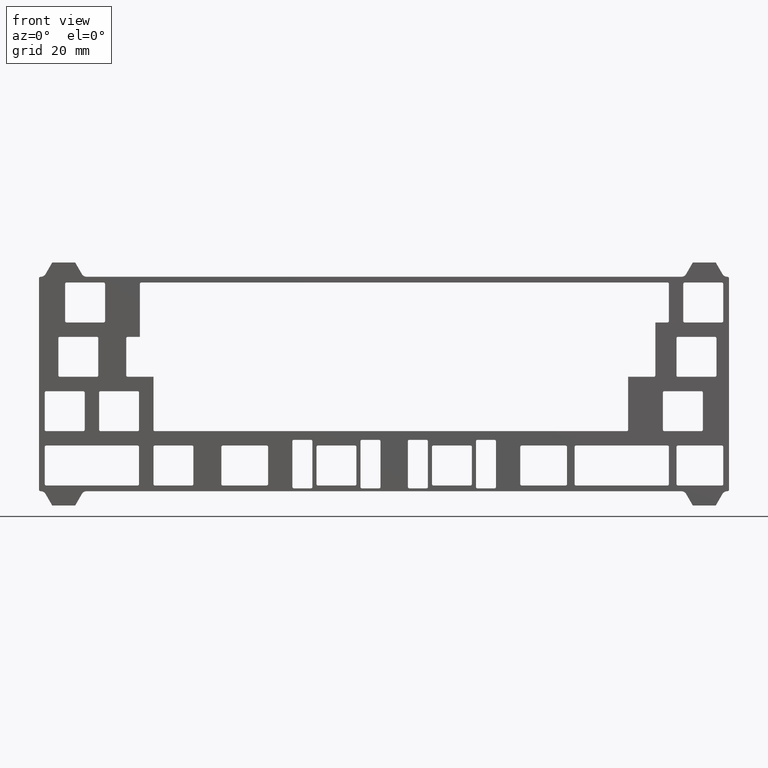
[diagram: clean part render]
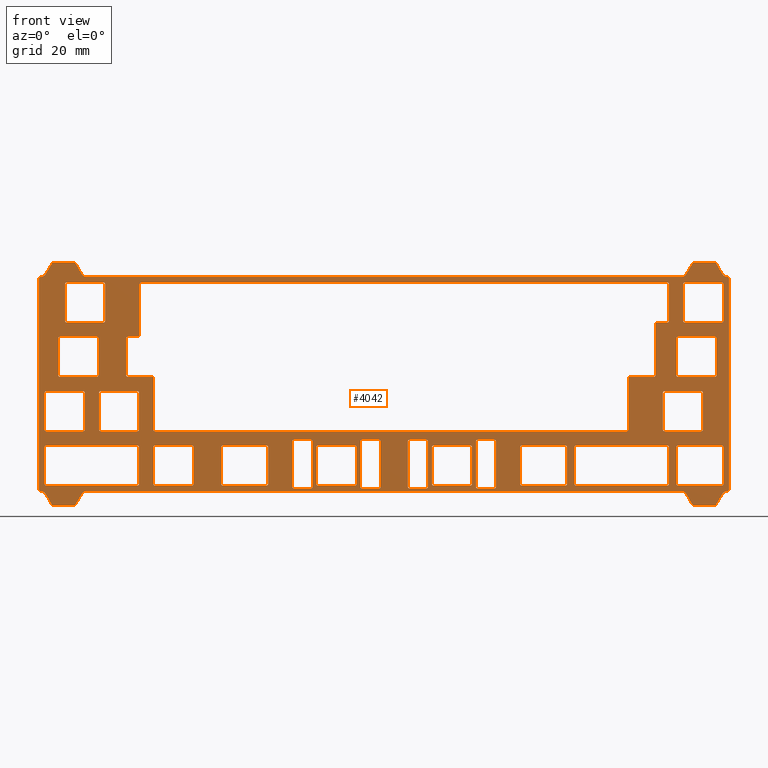
[diagram: same view with one face highlighted and labeled with its STEP entity id]
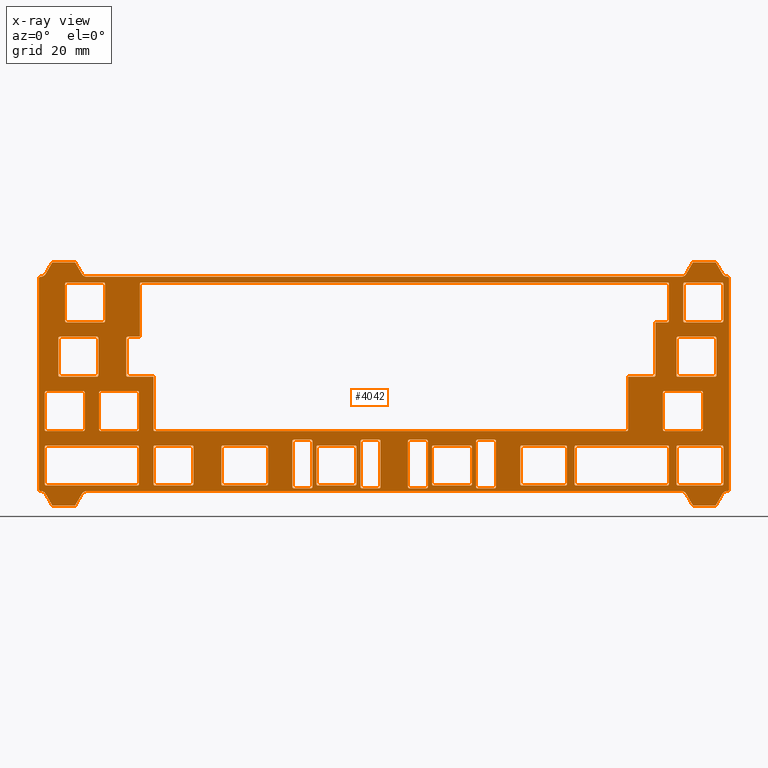
[diagram: x-ray of the same camera — body ghosted, the highlighted face saturated]
A machine part, front view. The second image highlights one B-rep face of the part: STEP entity #4042.
The next image is the same camera in x-ray: the body ghosted, the highlighted face saturated — about 0% of this face is hidden behind the body in this view.
In plain terms, the highlighted planar face has unit normal (0, 1, 0).
Its self-contained STEP definition (entity closure, byte-faithful):
#15=FACE_BOUND('',#603,.T.);
#16=FACE_BOUND('',#604,.T.);
#17=FACE_BOUND('',#605,.T.);
#18=FACE_BOUND('',#606,.T.);
#19=FACE_BOUND('',#607,.T.);
#20=FACE_BOUND('',#608,.T.);
#21=FACE_BOUND('',#609,.T.);
#22=FACE_BOUND('',#610,.T.);
#23=FACE_BOUND('',#611,.T.);
#24=FACE_BOUND('',#612,.T.);
#25=FACE_BOUND('',#613,.T.);
#26=FACE_BOUND('',#614,.T.);
#27=FACE_BOUND('',#615,.T.);
#28=FACE_BOUND('',#616,.T.);
#29=FACE_BOUND('',#617,.T.);
#30=FACE_BOUND('',#618,.T.);
#31=FACE_BOUND('',#619,.T.);
#32=FACE_BOUND('',#620,.T.);
#33=FACE_BOUND('',#621,.T.);
#34=FACE_BOUND('',#622,.T.);
#55=CIRCLE('',#4213,1.99999999999995);
#57=CIRCLE('',#4217,1.99999999999997);
#59=CIRCLE('',#4223,1.99999999999999);
#61=CIRCLE('',#4227,0.499999999999972);
#63=CIRCLE('',#4231,0.499999999999989);
#65=CIRCLE('',#4235,1.99999999999999);
#67=CIRCLE('',#4241,1.99999999999996);
#69=CIRCLE('',#4245,1.99999999999996);
#71=CIRCLE('',#4251,1.99999999999999);
#73=CIRCLE('',#4255,0.499999999999985);
#75=CIRCLE('',#4259,0.500000000000025);
#77=CIRCLE('',#4263,2.);
#79=CIRCLE('',#4266,0.499999999999998);
#82=CIRCLE('',#4271,0.500000000000007);
#83=CIRCLE('',#4273,0.499999999999998);
#86=CIRCLE('',#4278,0.500000000000007);
#87=CIRCLE('',#4280,0.499999999999998);
#90=CIRCLE('',#4285,0.500000000000007);
#91=CIRCLE('',#4287,0.499999999999998);
#93=CIRCLE('',#4291,0.499999999999989);
#95=CIRCLE('',#4303,0.500000000000025);
#96=CIRCLE('',#4304,0.500000000000007);
#97=CIRCLE('',#4305,0.500000000000025);
#98=CIRCLE('',#4306,0.500000000000007);
#99=CIRCLE('',#4307,0.499999999999989);
#100=CIRCLE('',#4308,0.500000000000025);
#101=CIRCLE('',#4309,0.500000000000007);
#102=CIRCLE('',#4310,0.500000000000025);
#103=CIRCLE('',#4311,0.499999999999998);
#104=CIRCLE('',#4312,0.500000000000007);
#105=CIRCLE('',#4313,0.499999999999998);
#106=CIRCLE('',#4314,0.500000000000007);
#107=CIRCLE('',#4315,0.499999999999998);
#108=CIRCLE('',#4316,0.499999999999998);
#109=CIRCLE('',#4317,0.499999999999998);
#110=CIRCLE('',#4318,0.499999999999998);
#111=CIRCLE('',#4319,0.499999999999998);
#112=CIRCLE('',#4320,0.500000000000007);
#113=CIRCLE('',#4321,0.499999999999998);
#114=CIRCLE('',#4322,0.500000000000007);
#115=CIRCLE('',#4323,0.499999999999998);
#116=CIRCLE('',#4324,0.499999999999998);
#117=CIRCLE('',#4325,0.499999999999998);
#118=CIRCLE('',#4326,0.499999999999998);
#119=CIRCLE('',#4327,0.499999999999998);
#120=CIRCLE('',#4328,0.499999999999972);
#121=CIRCLE('',#4329,0.499999999999998);
#122=CIRCLE('',#4330,0.500000000000007);
#123=CIRCLE('',#4331,0.499999999999998);
#124=CIRCLE('',#4332,0.500000000000007);
#125=CIRCLE('',#4333,0.499999999999998);
#126=CIRCLE('',#4334,0.500000000000007);
#127=CIRCLE('',#4335,0.499999999999998);
#128=CIRCLE('',#4336,0.5);
#129=CIRCLE('',#4337,0.499999999999998);
#130=CIRCLE('',#4338,0.499999999999998);
#131=CIRCLE('',#4339,0.499999999999998);
#132=CIRCLE('',#4340,0.500000000000007);
#133=CIRCLE('',#4341,0.499999999999998);
#134=CIRCLE('',#4342,0.500000000000007);
#135=CIRCLE('',#4343,0.499999999999998);
#136=CIRCLE('',#4344,0.5);
#137=CIRCLE('',#4345,0.499999999999998);
#138=CIRCLE('',#4346,0.5);
#139=CIRCLE('',#4347,0.5);
#140=CIRCLE('',#4348,0.500000000000007);
#141=CIRCLE('',#4349,0.5);
#142=CIRCLE('',#4350,0.500000000000007);
#143=CIRCLE('',#4351,0.499999999999998);
#144=CIRCLE('',#4352,0.499999999999998);
#145=CIRCLE('',#4353,0.500000000000007);
#146=CIRCLE('',#4354,0.500000000000007);
#147=CIRCLE('',#4355,0.5);
#148=CIRCLE('',#4356,0.499999999999998);
#149=CIRCLE('',#4357,0.499999999999998);
#150=CIRCLE('',#4358,0.499999999999998);
#151=CIRCLE('',#4359,0.5);
#152=CIRCLE('',#4360,0.5);
#153=CIRCLE('',#4361,0.5);
#154=CIRCLE('',#4362,0.5);
#155=CIRCLE('',#4363,0.499999999999998);
#156=CIRCLE('',#4364,0.500000000000007);
#157=CIRCLE('',#4365,0.499999999999998);
#158=CIRCLE('',#4366,0.500000000000007);
#159=CIRCLE('',#4367,0.499999999999998);
#160=CIRCLE('',#4368,0.500000000000007);
#161=CIRCLE('',#4369,0.499999999999998);
#162=CIRCLE('',#4370,0.500000000000007);
#163=CIRCLE('',#4371,0.499999999999972);
#164=CIRCLE('',#4372,0.499999999999998);
#165=CIRCLE('',#4373,0.499999999999972);
#166=CIRCLE('',#4374,0.499999999999976);
#167=CIRCLE('',#4375,0.499999999999994);
#168=CIRCLE('',#4376,0.500000000000016);
#169=CIRCLE('',#4377,0.500000000000003);
#170=CIRCLE('',#4378,0.500000000000016);
#396=FACE_OUTER_BOUND('',#602,.T.);
#602=EDGE_LOOP('',(#2867,#2868,#2869,#2870,#2871,#2872,#2873,#2874,#2875,
#2876,#2877,#2878,#2879,#2880,#2881,#2882,#2883,#2884,#2885,#2886,#2887,
#2888,#2889,#2890,#2891,#2892,#2893,#2894,#2895,#2896,#2897,#2898));
#603=EDGE_LOOP('',(#2899,#2900,#2901,#2902,#2903,#2904,#2905,#2906));
#604=EDGE_LOOP('',(#2907,#2908,#2909,#2910,#2911,#2912,#2913,#2914));
#605=EDGE_LOOP('',(#2915,#2916,#2917,#2918,#2919,#2920,#2921,#2922));
#606=EDGE_LOOP('',(#2923,#2924,#2925,#2926,#2927,#2928,#2929,#2930));
#607=EDGE_LOOP('',(#2931,#2932,#2933,#2934,#2935,#2936,#2937,#2938));
#608=EDGE_LOOP('',(#2939,#2940,#2941,#2942,#2943,#2944,#2945,#2946));
#609=EDGE_LOOP('',(#2947,#2948,#2949,#2950,#2951,#2952,#2953,#2954));
#610=EDGE_LOOP('',(#2955,#2956,#2957,#2958,#2959,#2960,#2961,#2962));
#611=EDGE_LOOP('',(#2963,#2964,#2965,#2966,#2967,#2968,#2969,#2970));
#612=EDGE_LOOP('',(#2971,#2972,#2973,#2974,#2975,#2976,#2977,#2978));
#613=EDGE_LOOP('',(#2979,#2980,#2981,#2982,#2983,#2984,#2985,#2986));
#614=EDGE_LOOP('',(#2987,#2988,#2989,#2990,#2991,#2992,#2993,#2994));
#615=EDGE_LOOP('',(#2995,#2996,#2997,#2998,#2999,#3000,#3001,#3002));
#616=EDGE_LOOP('',(#3003,#3004,#3005,#3006,#3007,#3008,#3009,#3010));
#617=EDGE_LOOP('',(#3011,#3012,#3013,#3014,#3015,#3016,#3017,#3018,#3019,
#3020,#3021,#3022,#3023,#3024,#3025,#3026,#3027,#3028,#3029,#3030));
#618=EDGE_LOOP('',(#3031,#3032,#3033,#3034,#3035,#3036,#3037,#3038));
#619=EDGE_LOOP('',(#3039,#3040,#3041,#3042,#3043,#3044,#3045,#3046));
#620=EDGE_LOOP('',(#3047,#3048,#3049,#3050,#3051,#3052,#3053,#3054));
#621=EDGE_LOOP('',(#3055,#3056,#3057,#3058,#3059,#3060,#3061,#3062));
#622=EDGE_LOOP('',(#3063,#3064,#3065,#3066,#3067,#3068,#3069,#3070));
#795=LINE('',#5829,#1215);
#799=LINE('',#5837,#1219);
#802=LINE('',#5843,#1222);
#806=LINE('',#5855,#1226);
#810=LINE('',#5867,#1230);
#813=LINE('',#5873,#1233);
#816=LINE('',#5879,#1236);
#820=LINE('',#5891,#1240);
#824=LINE('',#5903,#1244);
#828=LINE('',#5915,#1248);
#832=LINE('',#5927,#1252);
#835=LINE('',#5933,#1255);
#838=LINE('',#5939,#1258);
#842=LINE('',#5951,#1262);
#846=LINE('',#5963,#1266);
#849=LINE('',#5969,#1269);
#852=LINE('',#5975,#1272);
#856=LINE('',#5987,#1276);
#860=LINE('',#5999,#1280);
#864=LINE('',#6011,#1284);
#869=LINE('',#6029,#1289);
#875=LINE('',#6050,#1295);
#881=LINE('',#6071,#1301);
#887=LINE('',#6092,#1307);
#891=LINE('',#6104,#1311);
#896=LINE('',#6113,#1316);
#899=LINE('',#6119,#1319);
#902=LINE('',#6125,#1322);
#905=LINE('',#6131,#1325);
#906=LINE('',#6134,#1326);
#909=LINE('',#6140,#1329);
#912=LINE('',#6146,#1332);
#918=LINE('',#6158,#1338);
#919=LINE('',#6163,#1339);
#920=LINE('',#6168,#1340);
#921=LINE('',#6173,#1341);
#922=LINE('',#6178,#1342);
#923=LINE('',#6182,#1343);
#924=LINE('',#6186,#1344);
#925=LINE('',#6190,#1345);
#926=LINE('',#6194,#1346);
#927=LINE('',#6198,#1347);
#928=LINE('',#6202,#1348);
#929=LINE('',#6206,#1349);
#930=LINE('',#6210,#1350);
#931=LINE('',#6214,#1351);
#932=LINE('',#6218,#1352);
#933=LINE('',#6222,#1353);
#934=LINE('',#6226,#1354);
#935=LINE('',#6230,#1355);
#936=LINE('',#6234,#1356);
#937=LINE('',#6238,#1357);
#938=LINE('',#6242,#1358);
#939=LINE('',#6246,#1359);
#940=LINE('',#6250,#1360);
#941=LINE('',#6254,#1361);
#942=LINE('',#6258,#1362);
#943=LINE('',#6262,#1363);
#944=LINE('',#6266,#1364);
#945=LINE('',#6270,#1365);
#946=LINE('',#6274,#1366);
#947=LINE('',#6278,#1367);
#948=LINE('',#6282,#1368);
#949=LINE('',#6286,#1369);
#950=LINE('',#6290,#1370);
#951=LINE('',#6296,#1371);
#952=LINE('',#6300,#1372);
#953=LINE('',#6304,#1373);
#954=LINE('',#6307,#1374);
#955=LINE('',#6310,#1375);
#956=LINE('',#6314,#1376);
#957=LINE('',#6318,#1377);
#958=LINE('',#6322,#1378);
#959=LINE('',#6326,#1379);
#960=LINE('',#6330,#1380);
#961=LINE('',#6334,#1381);
#962=LINE('',#6338,#1382);
#963=LINE('',#6342,#1383);
#964=LINE('',#6345,#1384);
#965=LINE('',#6349,#1385);
#966=LINE('',#6353,#1386);
#967=LINE('',#6355,#1387);
#968=LINE('',#6359,#1388);
#969=LINE('',#6363,#1389);
#970=LINE('',#6367,#1390);
#971=LINE('',#6369,#1391);
#972=LINE('',#6373,#1392);
#973=LINE('',#6375,#1393);
#974=LINE('',#6379,#1394);
#975=LINE('',#6383,#1395);
#976=LINE('',#6387,#1396);
#977=LINE('',#6391,#1397);
#978=LINE('',#6395,#1398);
#979=LINE('',#6399,#1399);
#980=LINE('',#6403,#1400);
#981=LINE('',#6407,#1401);
#982=LINE('',#6411,#1402);
#983=LINE('',#6415,#1403);
#984=LINE('',#6419,#1404);
#985=LINE('',#6423,#1405);
#986=LINE('',#6427,#1406);
#987=LINE('',#6431,#1407);
#988=LINE('',#6435,#1408);
#989=LINE('',#6439,#1409);
#990=LINE('',#6443,#1410);
#991=LINE('',#6447,#1411);
#992=LINE('',#6451,#1412);
#993=LINE('',#6455,#1413);
#1215=VECTOR('',#4611,10.);
#1219=VECTOR('',#4617,10.);
#1222=VECTOR('',#4622,10.);
#1226=VECTOR('',#4634,10.);
#1230=VECTOR('',#4646,10.);
#1233=VECTOR('',#4651,10.);
#1236=VECTOR('',#4656,10.);
#1240=VECTOR('',#4668,10.);
#1244=VECTOR('',#4680,10.);
#1248=VECTOR('',#4692,10.);
#1252=VECTOR('',#4704,10.);
#1255=VECTOR('',#4709,10.);
#1258=VECTOR('',#4714,10.);
#1262=VECTOR('',#4726,10.);
#1266=VECTOR('',#4738,10.);
#1269=VECTOR('',#4743,10.);
#1272=VECTOR('',#4748,10.);
#1276=VECTOR('',#4760,10.);
#1280=VECTOR('',#4772,10.);
#1284=VECTOR('',#4784,10.);
#1289=VECTOR('',#4803,10.);
#1295=VECTOR('',#4823,10.);
#1301=VECTOR('',#4843,10.);
#1307=VECTOR('',#4863,10.);
#1311=VECTOR('',#4875,10.);
#1316=VECTOR('',#4882,10.);
#1319=VECTOR('',#4887,10.);
#1322=VECTOR('',#4892,10.);
#1325=VECTOR('',#4897,10.);
#1326=VECTOR('',#4900,10.);
#1329=VECTOR('',#4905,10.);
#1332=VECTOR('',#4910,10.);
#1338=VECTOR('',#4918,10.);
#1339=VECTOR('',#4923,10.);
#1340=VECTOR('',#4928,10.);
#1341=VECTOR('',#4933,10.);
#1342=VECTOR('',#4938,10.);
#1343=VECTOR('',#4941,10.);
#1344=VECTOR('',#4944,10.);
#1345=VECTOR('',#4947,10.);
#1346=VECTOR('',#4950,10.);
#1347=VECTOR('',#4953,10.);
#1348=VECTOR('',#4956,10.);
#1349=VECTOR('',#4959,10.);
#1350=VECTOR('',#4962,10.);
#1351=VECTOR('',#4965,10.);
#1352=VECTOR('',#4968,10.);
#1353=VECTOR('',#4971,10.);
#1354=VECTOR('',#4974,10.);
#1355=VECTOR('',#4977,10.);
#1356=VECTOR('',#4980,10.);
#1357=VECTOR('',#4983,10.);
#1358=VECTOR('',#4986,10.);
#1359=VECTOR('',#4989,10.);
#1360=VECTOR('',#4992,10.);
#1361=VECTOR('',#4995,10.);
#1362=VECTOR('',#4998,10.);
#1363=VECTOR('',#5001,10.);
#1364=VECTOR('',#5004,10.);
#1365=VECTOR('',#5007,10.);
#1366=VECTOR('',#5010,10.);
#1367=VECTOR('',#5013,10.);
#1368=VECTOR('',#5016,10.);
#1369=VECTOR('',#5019,10.);
#1370=VECTOR('',#5022,10.);
#1371=VECTOR('',#5027,10.);
#1372=VECTOR('',#5030,10.);
#1373=VECTOR('',#5033,10.);
#1374=VECTOR('',#5036,10.);
#1375=VECTOR('',#5037,10.);
#1376=VECTOR('',#5040,10.);
#1377=VECTOR('',#5043,10.);
#1378=VECTOR('',#5046,10.);
#1379=VECTOR('',#5049,10.);
#1380=VECTOR('',#5052,10.);
#1381=VECTOR('',#5055,10.);
#1382=VECTOR('',#5058,10.);
#1383=VECTOR('',#5061,10.);
#1384=VECTOR('',#5064,10.);
#1385=VECTOR('',#5067,10.);
#1386=VECTOR('',#5070,10.);
#1387=VECTOR('',#5071,10.);
#1388=VECTOR('',#5074,10.);
#1389=VECTOR('',#5077,10.);
#1390=VECTOR('',#5080,10.);
#1391=VECTOR('',#5081,10.);
#1392=VECTOR('',#5084,10.);
#1393=VECTOR('',#5085,10.);
#1394=VECTOR('',#5088,10.);
#1395=VECTOR('',#5091,10.);
#1396=VECTOR('',#5094,10.);
#1397=VECTOR('',#5097,10.);
#1398=VECTOR('',#5100,10.);
#1399=VECTOR('',#5103,10.);
#1400=VECTOR('',#5106,10.);
#1401=VECTOR('',#5109,10.);
#1402=VECTOR('',#5112,10.);
#1403=VECTOR('',#5115,10.);
#1404=VECTOR('',#5118,10.);
#1405=VECTOR('',#5121,10.);
#1406=VECTOR('',#5124,10.);
#1407=VECTOR('',#5127,10.);
#1408=VECTOR('',#5130,10.);
#1409=VECTOR('',#5133,10.);
#1410=VECTOR('',#5136,10.);
#1411=VECTOR('',#5139,10.);
#1412=VECTOR('',#5142,10.);
#1413=VECTOR('',#5145,10.);
#1635=VERTEX_POINT('',#5827);
#1636=VERTEX_POINT('',#5828);
#1639=VERTEX_POINT('',#5836);
#1641=VERTEX_POINT('',#5842);
#1643=VERTEX_POINT('',#5848);
#1645=VERTEX_POINT('',#5854);
#1647=VERTEX_POINT('',#5860);
#1649=VERTEX_POINT('',#5866);
#1651=VERTEX_POINT('',#5872);
#1653=VERTEX_POINT('',#5878);
#1655=VERTEX_POINT('',#5884);
#1657=VERTEX_POINT('',#5890);
#1659=VERTEX_POINT('',#5896);
#1661=VERTEX_POINT('',#5902);
#1663=VERTEX_POINT('',#5908);
#1665=VERTEX_POINT('',#5914);
#1667=VERTEX_POINT('',#5920);
#1669=VERTEX_POINT('',#5926);
#1671=VERTEX_POINT('',#5932);
#1673=VERTEX_POINT('',#5938);
#1675=VERTEX_POINT('',#5944);
#1677=VERTEX_POINT('',#5950);
#1679=VERTEX_POINT('',#5956);
#1681=VERTEX_POINT('',#5962);
#1683=VERTEX_POINT('',#5968);
#1685=VERTEX_POINT('',#5974);
#1687=VERTEX_POINT('',#5980);
#1689=VERTEX_POINT('',#5986);
#1691=VERTEX_POINT('',#5992);
#1693=VERTEX_POINT('',#5998);
#1695=VERTEX_POINT('',#6004);
#1697=VERTEX_POINT('',#6010);
#1699=VERTEX_POINT('',#6019);
#1700=VERTEX_POINT('',#6020);
#1703=VERTEX_POINT('',#6028);
#1706=VERTEX_POINT('',#6036);
#1707=VERTEX_POINT('',#6040);
#1708=VERTEX_POINT('',#6041);
#1711=VERTEX_POINT('',#6049);
#1714=VERTEX_POINT('',#6057);
#1715=VERTEX_POINT('',#6061);
#1716=VERTEX_POINT('',#6062);
#1719=VERTEX_POINT('',#6070);
#1722=VERTEX_POINT('',#6078);
#1723=VERTEX_POINT('',#6082);
#1724=VERTEX_POINT('',#6083);
#1727=VERTEX_POINT('',#6091);
#1729=VERTEX_POINT('',#6097);
#1731=VERTEX_POINT('',#6103);
#1734=VERTEX_POINT('',#6111);
#1736=VERTEX_POINT('',#6117);
#1738=VERTEX_POINT('',#6123);
#1740=VERTEX_POINT('',#6129);
#1741=VERTEX_POINT('',#6133);
#1743=VERTEX_POINT('',#6139);
#1745=VERTEX_POINT('',#6145);
#1747=VERTEX_POINT('',#6151);
#1750=VERTEX_POINT('',#6156);
#1751=VERTEX_POINT('',#6160);
#1752=VERTEX_POINT('',#6162);
#1753=VERTEX_POINT('',#6165);
#1754=VERTEX_POINT('',#6167);
#1755=VERTEX_POINT('',#6170);
#1756=VERTEX_POINT('',#6172);
#1757=VERTEX_POINT('',#6175);
#1758=VERTEX_POINT('',#6177);
#1759=VERTEX_POINT('',#6180);
#1760=VERTEX_POINT('',#6181);
#1761=VERTEX_POINT('',#6183);
#1762=VERTEX_POINT('',#6185);
#1763=VERTEX_POINT('',#6187);
#1764=VERTEX_POINT('',#6189);
#1765=VERTEX_POINT('',#6191);
#1766=VERTEX_POINT('',#6193);
#1767=VERTEX_POINT('',#6196);
#1768=VERTEX_POINT('',#6197);
#1769=VERTEX_POINT('',#6199);
#1770=VERTEX_POINT('',#6201);
#1771=VERTEX_POINT('',#6203);
#1772=VERTEX_POINT('',#6205);
#1773=VERTEX_POINT('',#6207);
#1774=VERTEX_POINT('',#6209);
#1775=VERTEX_POINT('',#6212);
#1776=VERTEX_POINT('',#6213);
#1777=VERTEX_POINT('',#6215);
#1778=VERTEX_POINT('',#6217);
#1779=VERTEX_POINT('',#6219);
#1780=VERTEX_POINT('',#6221);
#1781=VERTEX_POINT('',#6223);
#1782=VERTEX_POINT('',#6225);
#1783=VERTEX_POINT('',#6228);
#1784=VERTEX_POINT('',#6229);
#1785=VERTEX_POINT('',#6231);
#1786=VERTEX_POINT('',#6233);
#1787=VERTEX_POINT('',#6235);
#1788=VERTEX_POINT('',#6237);
#1789=VERTEX_POINT('',#6239);
#1790=VERTEX_POINT('',#6241);
#1791=VERTEX_POINT('',#6244);
#1792=VERTEX_POINT('',#6245);
#1793=VERTEX_POINT('',#6247);
#1794=VERTEX_POINT('',#6249);
#1795=VERTEX_POINT('',#6251);
#1796=VERTEX_POINT('',#6253);
#1797=VERTEX_POINT('',#6255);
#1798=VERTEX_POINT('',#6257);
#1799=VERTEX_POINT('',#6260);
#1800=VERTEX_POINT('',#6261);
#1801=VERTEX_POINT('',#6263);
#1802=VERTEX_POINT('',#6265);
#1803=VERTEX_POINT('',#6267);
#1804=VERTEX_POINT('',#6269);
#1805=VERTEX_POINT('',#6271);
#1806=VERTEX_POINT('',#6273);
#1807=VERTEX_POINT('',#6276);
#1808=VERTEX_POINT('',#6277);
#1809=VERTEX_POINT('',#6279);
#1810=VERTEX_POINT('',#6281);
#1811=VERTEX_POINT('',#6283);
#1812=VERTEX_POINT('',#6285);
#1813=VERTEX_POINT('',#6287);
#1814=VERTEX_POINT('',#6289);
#1815=VERTEX_POINT('',#6292);
#1816=VERTEX_POINT('',#6293);
#1817=VERTEX_POINT('',#6295);
#1818=VERTEX_POINT('',#6297);
#1819=VERTEX_POINT('',#6299);
#1820=VERTEX_POINT('',#6301);
#1821=VERTEX_POINT('',#6303);
#1822=VERTEX_POINT('',#6305);
#1823=VERTEX_POINT('',#6308);
#1824=VERTEX_POINT('',#6309);
#1825=VERTEX_POINT('',#6311);
#1826=VERTEX_POINT('',#6313);
#1827=VERTEX_POINT('',#6315);
#1828=VERTEX_POINT('',#6317);
#1829=VERTEX_POINT('',#6319);
#1830=VERTEX_POINT('',#6321);
#1831=VERTEX_POINT('',#6324);
#1832=VERTEX_POINT('',#6325);
#1833=VERTEX_POINT('',#6327);
#1834=VERTEX_POINT('',#6329);
#1835=VERTEX_POINT('',#6331);
#1836=VERTEX_POINT('',#6333);
#1837=VERTEX_POINT('',#6335);
#1838=VERTEX_POINT('',#6337);
#1839=VERTEX_POINT('',#6340);
#1840=VERTEX_POINT('',#6341);
#1841=VERTEX_POINT('',#6343);
#1842=VERTEX_POINT('',#6346);
#1843=VERTEX_POINT('',#6348);
#1844=VERTEX_POINT('',#6350);
#1845=VERTEX_POINT('',#6352);
#1846=VERTEX_POINT('',#6354);
#1847=VERTEX_POINT('',#6356);
#1848=VERTEX_POINT('',#6358);
#1849=VERTEX_POINT('',#6360);
#1850=VERTEX_POINT('',#6362);
#1851=VERTEX_POINT('',#6364);
#1852=VERTEX_POINT('',#6366);
#1853=VERTEX_POINT('',#6368);
#1854=VERTEX_POINT('',#6370);
#1855=VERTEX_POINT('',#6372);
#1856=VERTEX_POINT('',#6374);
#1857=VERTEX_POINT('',#6377);
#1858=VERTEX_POINT('',#6378);
#1859=VERTEX_POINT('',#6380);
#1860=VERTEX_POINT('',#6382);
#1861=VERTEX_POINT('',#6384);
#1862=VERTEX_POINT('',#6386);
#1863=VERTEX_POINT('',#6388);
#1864=VERTEX_POINT('',#6390);
#1865=VERTEX_POINT('',#6393);
#1866=VERTEX_POINT('',#6394);
#1867=VERTEX_POINT('',#6396);
#1868=VERTEX_POINT('',#6398);
#1869=VERTEX_POINT('',#6400);
#1870=VERTEX_POINT('',#6402);
#1871=VERTEX_POINT('',#6404);
#1872=VERTEX_POINT('',#6406);
#1873=VERTEX_POINT('',#6409);
#1874=VERTEX_POINT('',#6410);
#1875=VERTEX_POINT('',#6412);
#1876=VERTEX_POINT('',#6414);
#1877=VERTEX_POINT('',#6416);
#1878=VERTEX_POINT('',#6418);
#1879=VERTEX_POINT('',#6420);
#1880=VERTEX_POINT('',#6422);
#1881=VERTEX_POINT('',#6425);
#1882=VERTEX_POINT('',#6426);
#1883=VERTEX_POINT('',#6428);
#1884=VERTEX_POINT('',#6430);
#1885=VERTEX_POINT('',#6432);
#1886=VERTEX_POINT('',#6434);
#1887=VERTEX_POINT('',#6436);
#1888=VERTEX_POINT('',#6438);
#1889=VERTEX_POINT('',#6441);
#1890=VERTEX_POINT('',#6442);
#1891=VERTEX_POINT('',#6444);
#1892=VERTEX_POINT('',#6446);
#1893=VERTEX_POINT('',#6448);
#1894=VERTEX_POINT('',#6450);
#1895=VERTEX_POINT('',#6452);
#1896=VERTEX_POINT('',#6454);
#2043=EDGE_CURVE('',#1635,#1636,#795,.T.);
#2047=EDGE_CURVE('',#1636,#1639,#799,.T.);
#2050=EDGE_CURVE('',#1639,#1641,#802,.T.);
#2053=EDGE_CURVE('',#1641,#1643,#55,.T.);
#2056=EDGE_CURVE('',#1643,#1645,#806,.T.);
#2059=EDGE_CURVE('',#1645,#1647,#57,.T.);
#2062=EDGE_CURVE('',#1647,#1649,#810,.T.);
#2065=EDGE_CURVE('',#1649,#1651,#813,.T.);
#2068=EDGE_CURVE('',#1651,#1653,#816,.T.);
#2071=EDGE_CURVE('',#1653,#1655,#59,.T.);
#2074=EDGE_CURVE('',#1655,#1657,#820,.T.);
#2077=EDGE_CURVE('',#1657,#1659,#61,.T.);
#2080=EDGE_CURVE('',#1659,#1661,#824,.T.);
#2083=EDGE_CURVE('',#1661,#1663,#63,.T.);
#2086=EDGE_CURVE('',#1663,#1665,#828,.T.);
#2089=EDGE_CURVE('',#1665,#1667,#65,.T.);
#2092=EDGE_CURVE('',#1667,#1669,#832,.T.);
#2095=EDGE_CURVE('',#1669,#1671,#835,.T.);
#2098=EDGE_CURVE('',#1671,#1673,#838,.T.);
#2101=EDGE_CURVE('',#1673,#1675,#67,.T.);
#2104=EDGE_CURVE('',#1675,#1677,#842,.T.);
#2107=EDGE_CURVE('',#1677,#1679,#69,.T.);
#2110=EDGE_CURVE('',#1679,#1681,#846,.T.);
#2113=EDGE_CURVE('',#1681,#1683,#849,.T.);
#2116=EDGE_CURVE('',#1683,#1685,#852,.T.);
#2119=EDGE_CURVE('',#1685,#1687,#71,.T.);
#2122=EDGE_CURVE('',#1687,#1689,#856,.T.);
#2125=EDGE_CURVE('',#1689,#1691,#73,.T.);
#2128=EDGE_CURVE('',#1691,#1693,#860,.T.);
#2131=EDGE_CURVE('',#1693,#1695,#75,.T.);
#2134=EDGE_CURVE('',#1695,#1697,#864,.T.);
#2137=EDGE_CURVE('',#1697,#1635,#77,.T.);
#2139=EDGE_CURVE('',#1699,#1700,#79,.T.);
#2143=EDGE_CURVE('',#1703,#1700,#869,.T.);
#2147=EDGE_CURVE('',#1703,#1706,#82,.T.);
#2149=EDGE_CURVE('',#1707,#1708,#83,.T.);
#2153=EDGE_CURVE('',#1711,#1708,#875,.T.);
#2157=EDGE_CURVE('',#1711,#1714,#86,.T.);
#2159=EDGE_CURVE('',#1715,#1716,#87,.T.);
#2163=EDGE_CURVE('',#1719,#1716,#881,.T.);
#2167=EDGE_CURVE('',#1719,#1722,#90,.T.);
#2169=EDGE_CURVE('',#1723,#1724,#91,.T.);
#2173=EDGE_CURVE('',#1727,#1724,#887,.T.);
#2176=EDGE_CURVE('',#1727,#1729,#93,.T.);
#2179=EDGE_CURVE('',#1731,#1729,#891,.T.);
#2184=EDGE_CURVE('',#1734,#1699,#896,.T.);
#2187=EDGE_CURVE('',#1736,#1707,#899,.T.);
#2190=EDGE_CURVE('',#1738,#1715,#902,.T.);
#2193=EDGE_CURVE('',#1740,#1723,#905,.T.);
#2194=EDGE_CURVE('',#1741,#1706,#906,.T.);
#2197=EDGE_CURVE('',#1743,#1714,#909,.T.);
#2200=EDGE_CURVE('',#1745,#1722,#912,.T.);
#2206=EDGE_CURVE('',#1747,#1750,#918,.T.);
#2207=EDGE_CURVE('',#1738,#1751,#95,.T.);
#2208=EDGE_CURVE('',#1751,#1752,#919,.T.);
#2209=EDGE_CURVE('',#1752,#1745,#96,.T.);
#2210=EDGE_CURVE('',#1736,#1753,#97,.T.);
#2211=EDGE_CURVE('',#1753,#1754,#920,.T.);
#2212=EDGE_CURVE('',#1754,#1743,#98,.T.);
#2213=EDGE_CURVE('',#1734,#1755,#99,.T.);
#2214=EDGE_CURVE('',#1756,#1755,#921,.T.);
#2215=EDGE_CURVE('',#1756,#1741,#100,.T.);
#2216=EDGE_CURVE('',#1740,#1757,#101,.T.);
#2217=EDGE_CURVE('',#1758,#1757,#922,.T.);
#2218=EDGE_CURVE('',#1758,#1731,#102,.T.);
#2219=EDGE_CURVE('',#1759,#1760,#923,.T.);
#2220=EDGE_CURVE('',#1759,#1761,#103,.T.);
#2221=EDGE_CURVE('',#1761,#1762,#924,.T.);
#2222=EDGE_CURVE('',#1762,#1763,#104,.T.);
#2223=EDGE_CURVE('',#1763,#1764,#925,.T.);
#2224=EDGE_CURVE('',#1764,#1765,#105,.T.);
#2225=EDGE_CURVE('',#1766,#1765,#926,.T.);
#2226=EDGE_CURVE('',#1766,#1760,#106,.T.);
#2227=EDGE_CURVE('',#1767,#1768,#927,.T.);
#2228=EDGE_CURVE('',#1767,#1769,#107,.T.);
#2229=EDGE_CURVE('',#1769,#1770,#928,.T.);
#2230=EDGE_CURVE('',#1770,#1771,#108,.T.);
#2231=EDGE_CURVE('',#1771,#1772,#929,.T.);
#2232=EDGE_CURVE('',#1772,#1773,#109,.T.);
#2233=EDGE_CURVE('',#1774,#1773,#930,.T.);
#2234=EDGE_CURVE('',#1774,#1768,#110,.T.);
#2235=EDGE_CURVE('',#1775,#1776,#931,.T.);
#2236=EDGE_CURVE('',#1775,#1777,#111,.T.);
#2237=EDGE_CURVE('',#1777,#1778,#932,.T.);
#2238=EDGE_CURVE('',#1778,#1779,#112,.T.);
#2239=EDGE_CURVE('',#1779,#1780,#933,.T.);
#2240=EDGE_CURVE('',#1780,#1781,#113,.T.);
#2241=EDGE_CURVE('',#1782,#1781,#934,.T.);
#2242=EDGE_CURVE('',#1782,#1776,#114,.T.);
#2243=EDGE_CURVE('',#1783,#1784,#935,.T.);
#2244=EDGE_CURVE('',#1783,#1785,#115,.T.);
#2245=EDGE_CURVE('',#1785,#1786,#936,.T.);
#2246=EDGE_CURVE('',#1786,#1787,#116,.T.);
#2247=EDGE_CURVE('',#1787,#1788,#937,.T.);
#2248=EDGE_CURVE('',#1788,#1789,#117,.T.);
#2249=EDGE_CURVE('',#1790,#1789,#938,.T.);
#2250=EDGE_CURVE('',#1790,#1784,#118,.T.);
#2251=EDGE_CURVE('',#1791,#1792,#939,.T.);
#2252=EDGE_CURVE('',#1791,#1793,#119,.T.);
#2253=EDGE_CURVE('',#1793,#1794,#940,.T.);
#2254=EDGE_CURVE('',#1794,#1795,#120,.T.);
#2255=EDGE_CURVE('',#1795,#1796,#941,.T.);
#2256=EDGE_CURVE('',#1796,#1797,#121,.T.);
#2257=EDGE_CURVE('',#1798,#1797,#942,.T.);
#2258=EDGE_CURVE('',#1798,#1792,#122,.T.);
#2259=EDGE_CURVE('',#1799,#1800,#943,.T.);
#2260=EDGE_CURVE('',#1799,#1801,#123,.T.);
#2261=EDGE_CURVE('',#1801,#1802,#944,.T.);
#2262=EDGE_CURVE('',#1802,#1803,#124,.T.);
#2263=EDGE_CURVE('',#1803,#1804,#945,.T.);
#2264=EDGE_CURVE('',#1804,#1805,#125,.T.);
#2265=EDGE_CURVE('',#1806,#1805,#946,.T.);
#2266=EDGE_CURVE('',#1806,#1800,#126,.T.);
#2267=EDGE_CURVE('',#1807,#1808,#947,.T.);
#2268=EDGE_CURVE('',#1807,#1809,#127,.T.);
#2269=EDGE_CURVE('',#1809,#1810,#948,.T.);
#2270=EDGE_CURVE('',#1810,#1811,#128,.T.);
#2271=EDGE_CURVE('',#1811,#1812,#949,.T.);
#2272=EDGE_CURVE('',#1812,#1813,#129,.T.);
#2273=EDGE_CURVE('',#1814,#1813,#950,.T.);
#2274=EDGE_CURVE('',#1814,#1808,#130,.T.);
#2275=EDGE_CURVE('',#1815,#1816,#131,.T.);
#2276=EDGE_CURVE('',#1816,#1817,#951,.T.);
#2277=EDGE_CURVE('',#1817,#1818,#132,.T.);
#2278=EDGE_CURVE('',#1818,#1819,#952,.T.);
#2279=EDGE_CURVE('',#1819,#1820,#133,.T.);
#2280=EDGE_CURVE('',#1821,#1820,#953,.T.);
#2281=EDGE_CURVE('',#1821,#1822,#134,.T.);
#2282=EDGE_CURVE('',#1815,#1822,#954,.T.);
#2283=EDGE_CURVE('',#1823,#1824,#955,.T.);
#2284=EDGE_CURVE('',#1823,#1825,#135,.T.);
#2285=EDGE_CURVE('',#1825,#1826,#956,.T.);
#2286=EDGE_CURVE('',#1826,#1827,#136,.T.);
#2287=EDGE_CURVE('',#1827,#1828,#957,.T.);
#2288=EDGE_CURVE('',#1828,#1829,#137,.T.);
#2289=EDGE_CURVE('',#1830,#1829,#958,.T.);
#2290=EDGE_CURVE('',#1830,#1824,#138,.T.);
#2291=EDGE_CURVE('',#1831,#1832,#959,.T.);
#2292=EDGE_CURVE('',#1831,#1833,#139,.T.);
#2293=EDGE_CURVE('',#1833,#1834,#960,.T.);
#2294=EDGE_CURVE('',#1834,#1835,#140,.T.);
#2295=EDGE_CURVE('',#1835,#1836,#961,.T.);
#2296=EDGE_CURVE('',#1836,#1837,#141,.T.);
#2297=EDGE_CURVE('',#1838,#1837,#962,.T.);
#2298=EDGE_CURVE('',#1838,#1832,#142,.T.);
#2299=EDGE_CURVE('',#1839,#1840,#963,.T.);
#2300=EDGE_CURVE('',#1840,#1841,#143,.T.);
#2301=EDGE_CURVE('',#1841,#1747,#964,.T.);
#2302=EDGE_CURVE('',#1750,#1842,#144,.T.);
#2303=EDGE_CURVE('',#1842,#1843,#965,.T.);
#2304=EDGE_CURVE('',#1843,#1844,#145,.T.);
#2305=EDGE_CURVE('',#1844,#1845,#966,.T.);
#2306=EDGE_CURVE('',#1846,#1845,#967,.T.);
#2307=EDGE_CURVE('',#1846,#1847,#146,.T.);
#2308=EDGE_CURVE('',#1848,#1847,#968,.T.);
#2309=EDGE_CURVE('',#1848,#1849,#147,.T.);
#2310=EDGE_CURVE('',#1849,#1850,#969,.T.);
#2311=EDGE_CURVE('',#1850,#1851,#148,.T.);
#2312=EDGE_CURVE('',#1851,#1852,#970,.T.);
#2313=EDGE_CURVE('',#1852,#1853,#971,.T.);
#2314=EDGE_CURVE('',#1853,#1854,#149,.T.);
#2315=EDGE_CURVE('',#1854,#1855,#972,.T.);
#2316=EDGE_CURVE('',#1855,#1856,#973,.T.);
#2317=EDGE_CURVE('',#1856,#1839,#150,.T.);
#2318=EDGE_CURVE('',#1857,#1858,#974,.T.);
#2319=EDGE_CURVE('',#1857,#1859,#151,.T.);
#2320=EDGE_CURVE('',#1860,#1859,#975,.T.);
#2321=EDGE_CURVE('',#1860,#1861,#152,.T.);
#2322=EDGE_CURVE('',#1861,#1862,#976,.T.);
#2323=EDGE_CURVE('',#1862,#1863,#153,.T.);
#2324=EDGE_CURVE('',#1863,#1864,#977,.T.);
#2325=EDGE_CURVE('',#1864,#1858,#154,.T.);
#2326=EDGE_CURVE('',#1865,#1866,#978,.T.);
#2327=EDGE_CURVE('',#1865,#1867,#155,.T.);
#2328=EDGE_CURVE('',#1867,#1868,#979,.T.);
#2329=EDGE_CURVE('',#1868,#1869,#156,.T.);
#2330=EDGE_CURVE('',#1869,#1870,#980,.T.);
#2331=EDGE_CURVE('',#1870,#1871,#157,.T.);
#2332=EDGE_CURVE('',#1872,#1871,#981,.T.);
#2333=EDGE_CURVE('',#1872,#1866,#158,.T.);
#2334=EDGE_CURVE('',#1873,#1874,#982,.T.);
#2335=EDGE_CURVE('',#1873,#1875,#159,.T.);
#2336=EDGE_CURVE('',#1875,#1876,#983,.T.);
#2337=EDGE_CURVE('',#1876,#1877,#160,.T.);
#2338=EDGE_CURVE('',#1877,#1878,#984,.T.);
#2339=EDGE_CURVE('',#1878,#1879,#161,.T.);
#2340=EDGE_CURVE('',#1880,#1879,#985,.T.);
#2341=EDGE_CURVE('',#1880,#1874,#162,.T.);
#2342=EDGE_CURVE('',#1881,#1882,#986,.T.);
#2343=EDGE_CURVE('',#1881,#1883,#163,.T.);
#2344=EDGE_CURVE('',#1884,#1883,#987,.T.);
#2345=EDGE_CURVE('',#1884,#1885,#164,.T.);
#2346=EDGE_CURVE('',#1885,#1886,#988,.T.);
#2347=EDGE_CURVE('',#1886,#1887,#165,.T.);
#2348=EDGE_CURVE('',#1887,#1888,#989,.T.);
#2349=EDGE_CURVE('',#1888,#1882,#166,.T.);
#2350=EDGE_CURVE('',#1889,#1890,#990,.T.);
#2351=EDGE_CURVE('',#1891,#1889,#167,.T.);
#2352=EDGE_CURVE('',#1891,#1892,#991,.T.);
#2353=EDGE_CURVE('',#1893,#1892,#168,.T.);
#2354=EDGE_CURVE('',#1893,#1894,#992,.T.);
#2355=EDGE_CURVE('',#1895,#1894,#169,.T.);
#2356=EDGE_CURVE('',#1896,#1895,#993,.T.);
#2357=EDGE_CURVE('',#1890,#1896,#170,.T.);
#2867=ORIENTED_EDGE('',*,*,#2092,.T.);
#2868=ORIENTED_EDGE('',*,*,#2095,.T.);
#2869=ORIENTED_EDGE('',*,*,#2098,.T.);
#2870=ORIENTED_EDGE('',*,*,#2101,.T.);
#2871=ORIENTED_EDGE('',*,*,#2104,.T.);
#2872=ORIENTED_EDGE('',*,*,#2107,.T.);
#2873=ORIENTED_EDGE('',*,*,#2110,.T.);
#2874=ORIENTED_EDGE('',*,*,#2113,.T.);
#2875=ORIENTED_EDGE('',*,*,#2116,.T.);
#2876=ORIENTED_EDGE('',*,*,#2119,.T.);
#2877=ORIENTED_EDGE('',*,*,#2122,.T.);
#2878=ORIENTED_EDGE('',*,*,#2125,.T.);
#2879=ORIENTED_EDGE('',*,*,#2128,.T.);
#2880=ORIENTED_EDGE('',*,*,#2131,.T.);
#2881=ORIENTED_EDGE('',*,*,#2134,.T.);
#2882=ORIENTED_EDGE('',*,*,#2137,.T.);
#2883=ORIENTED_EDGE('',*,*,#2043,.T.);
#2884=ORIENTED_EDGE('',*,*,#2047,.T.);
#2885=ORIENTED_EDGE('',*,*,#2050,.T.);
#2886=ORIENTED_EDGE('',*,*,#2053,.T.);
#2887=ORIENTED_EDGE('',*,*,#2056,.T.);
#2888=ORIENTED_EDGE('',*,*,#2059,.T.);
#2889=ORIENTED_EDGE('',*,*,#2062,.T.);
#2890=ORIENTED_EDGE('',*,*,#2065,.T.);
#2891=ORIENTED_EDGE('',*,*,#2068,.T.);
#2892=ORIENTED_EDGE('',*,*,#2071,.T.);
#2893=ORIENTED_EDGE('',*,*,#2074,.T.);
#2894=ORIENTED_EDGE('',*,*,#2077,.T.);
#2895=ORIENTED_EDGE('',*,*,#2080,.T.);
#2896=ORIENTED_EDGE('',*,*,#2083,.T.);
#2897=ORIENTED_EDGE('',*,*,#2086,.T.);
#2898=ORIENTED_EDGE('',*,*,#2089,.T.);
#2899=ORIENTED_EDGE('',*,*,#2163,.T.);
#2900=ORIENTED_EDGE('',*,*,#2159,.F.);
#2901=ORIENTED_EDGE('',*,*,#2190,.F.);
#2902=ORIENTED_EDGE('',*,*,#2207,.T.);
#2903=ORIENTED_EDGE('',*,*,#2208,.T.);
#2904=ORIENTED_EDGE('',*,*,#2209,.T.);
#2905=ORIENTED_EDGE('',*,*,#2200,.T.);
#2906=ORIENTED_EDGE('',*,*,#2167,.F.);
#2907=ORIENTED_EDGE('',*,*,#2153,.T.);
#2908=ORIENTED_EDGE('',*,*,#2149,.F.);
#2909=ORIENTED_EDGE('',*,*,#2187,.F.);
#2910=ORIENTED_EDGE('',*,*,#2210,.T.);
#2911=ORIENTED_EDGE('',*,*,#2211,.T.);
#2912=ORIENTED_EDGE('',*,*,#2212,.T.);
#2913=ORIENTED_EDGE('',*,*,#2197,.T.);
#2914=ORIENTED_EDGE('',*,*,#2157,.F.);
#2915=ORIENTED_EDGE('',*,*,#2143,.T.);
#2916=ORIENTED_EDGE('',*,*,#2139,.F.);
#2917=ORIENTED_EDGE('',*,*,#2184,.F.);
#2918=ORIENTED_EDGE('',*,*,#2213,.T.);
#2919=ORIENTED_EDGE('',*,*,#2214,.F.);
#2920=ORIENTED_EDGE('',*,*,#2215,.T.);
#2921=ORIENTED_EDGE('',*,*,#2194,.T.);
#2922=ORIENTED_EDGE('',*,*,#2147,.F.);
#2923=ORIENTED_EDGE('',*,*,#2193,.F.);
#2924=ORIENTED_EDGE('',*,*,#2216,.T.);
#2925=ORIENTED_EDGE('',*,*,#2217,.F.);
#2926=ORIENTED_EDGE('',*,*,#2218,.T.);
#2927=ORIENTED_EDGE('',*,*,#2179,.T.);
#2928=ORIENTED_EDGE('',*,*,#2176,.F.);
#2929=ORIENTED_EDGE('',*,*,#2173,.T.);
#2930=ORIENTED_EDGE('',*,*,#2169,.F.);
#2931=ORIENTED_EDGE('',*,*,#2219,.F.);
#2932=ORIENTED_EDGE('',*,*,#2220,.T.);
#2933=ORIENTED_EDGE('',*,*,#2221,.T.);
#2934=ORIENTED_EDGE('',*,*,#2222,.T.);
#2935=ORIENTED_EDGE('',*,*,#2223,.T.);
#2936=ORIENTED_EDGE('',*,*,#2224,.T.);
#2937=ORIENTED_EDGE('',*,*,#2225,.F.);
#2938=ORIENTED_EDGE('',*,*,#2226,.T.);
#2939=ORIENTED_EDGE('',*,*,#2227,.F.);
#2940=ORIENTED_EDGE('',*,*,#2228,.T.);
#2941=ORIENTED_EDGE('',*,*,#2229,.T.);
#2942=ORIENTED_EDGE('',*,*,#2230,.T.);
#2943=ORIENTED_EDGE('',*,*,#2231,.T.);
#2944=ORIENTED_EDGE('',*,*,#2232,.T.);
#2945=ORIENTED_EDGE('',*,*,#2233,.F.);
#2946=ORIENTED_EDGE('',*,*,#2234,.T.);
#2947=ORIENTED_EDGE('',*,*,#2235,.F.);
#2948=ORIENTED_EDGE('',*,*,#2236,.T.);
#2949=ORIENTED_EDGE('',*,*,#2237,.T.);
#2950=ORIENTED_EDGE('',*,*,#2238,.T.);
#2951=ORIENTED_EDGE('',*,*,#2239,.T.);
#2952=ORIENTED_EDGE('',*,*,#2240,.T.);
#2953=ORIENTED_EDGE('',*,*,#2241,.F.);
#2954=ORIENTED_EDGE('',*,*,#2242,.T.);
#2955=ORIENTED_EDGE('',*,*,#2243,.F.);
#2956=ORIENTED_EDGE('',*,*,#2244,.T.);
#2957=ORIENTED_EDGE('',*,*,#2245,.T.);
#2958=ORIENTED_EDGE('',*,*,#2246,.T.);
#2959=ORIENTED_EDGE('',*,*,#2247,.T.);
#2960=ORIENTED_EDGE('',*,*,#2248,.T.);
#2961=ORIENTED_EDGE('',*,*,#2249,.F.);
#2962=ORIENTED_EDGE('',*,*,#2250,.T.);
#2963=ORIENTED_EDGE('',*,*,#2251,.F.);
#2964=ORIENTED_EDGE('',*,*,#2252,.T.);
#2965=ORIENTED_EDGE('',*,*,#2253,.T.);
#2966=ORIENTED_EDGE('',*,*,#2254,.T.);
#2967=ORIENTED_EDGE('',*,*,#2255,.T.);
#2968=ORIENTED_EDGE('',*,*,#2256,.T.);
#2969=ORIENTED_EDGE('',*,*,#2257,.F.);
#2970=ORIENTED_EDGE('',*,*,#2258,.T.);
#2971=ORIENTED_EDGE('',*,*,#2259,.F.);
#2972=ORIENTED_EDGE('',*,*,#2260,.T.);
#2973=ORIENTED_EDGE('',*,*,#2261,.T.);
#2974=ORIENTED_EDGE('',*,*,#2262,.T.);
#2975=ORIENTED_EDGE('',*,*,#2263,.T.);
#2976=ORIENTED_EDGE('',*,*,#2264,.T.);
#2977=ORIENTED_EDGE('',*,*,#2265,.F.);
#2978=ORIENTED_EDGE('',*,*,#2266,.T.);
#2979=ORIENTED_EDGE('',*,*,#2267,.F.);
#2980=ORIENTED_EDGE('',*,*,#2268,.T.);
#2981=ORIENTED_EDGE('',*,*,#2269,.T.);
#2982=ORIENTED_EDGE('',*,*,#2270,.T.);
#2983=ORIENTED_EDGE('',*,*,#2271,.T.);
#2984=ORIENTED_EDGE('',*,*,#2272,.T.);
#2985=ORIENTED_EDGE('',*,*,#2273,.F.);
#2986=ORIENTED_EDGE('',*,*,#2274,.T.);
#2987=ORIENTED_EDGE('',*,*,#2275,.T.);
#2988=ORIENTED_EDGE('',*,*,#2276,.T.);
#2989=ORIENTED_EDGE('',*,*,#2277,.T.);
#2990=ORIENTED_EDGE('',*,*,#2278,.T.);
#2991=ORIENTED_EDGE('',*,*,#2279,.T.);
#2992=ORIENTED_EDGE('',*,*,#2280,.F.);
#2993=ORIENTED_EDGE('',*,*,#2281,.T.);
#2994=ORIENTED_EDGE('',*,*,#2282,.F.);
#2995=ORIENTED_EDGE('',*,*,#2283,.F.);
#2996=ORIENTED_EDGE('',*,*,#2284,.T.);
#2997=ORIENTED_EDGE('',*,*,#2285,.T.);
#2998=ORIENTED_EDGE('',*,*,#2286,.T.);
#2999=ORIENTED_EDGE('',*,*,#2287,.T.);
#3000=ORIENTED_EDGE('',*,*,#2288,.T.);
#3001=ORIENTED_EDGE('',*,*,#2289,.F.);
#3002=ORIENTED_EDGE('',*,*,#2290,.T.);
#3003=ORIENTED_EDGE('',*,*,#2291,.F.);
#3004=ORIENTED_EDGE('',*,*,#2292,.T.);
#3005=ORIENTED_EDGE('',*,*,#2293,.T.);
#3006=ORIENTED_EDGE('',*,*,#2294,.T.);
#3007=ORIENTED_EDGE('',*,*,#2295,.T.);
#3008=ORIENTED_EDGE('',*,*,#2296,.T.);
#3009=ORIENTED_EDGE('',*,*,#2297,.F.);
#3010=ORIENTED_EDGE('',*,*,#2298,.T.);
#3011=ORIENTED_EDGE('',*,*,#2299,.T.);
#3012=ORIENTED_EDGE('',*,*,#2300,.T.);
#3013=ORIENTED_EDGE('',*,*,#2301,.T.);
#3014=ORIENTED_EDGE('',*,*,#2206,.T.);
#3015=ORIENTED_EDGE('',*,*,#2302,.T.);
#3016=ORIENTED_EDGE('',*,*,#2303,.T.);
#3017=ORIENTED_EDGE('',*,*,#2304,.T.);
#3018=ORIENTED_EDGE('',*,*,#2305,.T.);
#3019=ORIENTED_EDGE('',*,*,#2306,.F.);
#3020=ORIENTED_EDGE('',*,*,#2307,.T.);
#3021=ORIENTED_EDGE('',*,*,#2308,.F.);
#3022=ORIENTED_EDGE('',*,*,#2309,.T.);
#3023=ORIENTED_EDGE('',*,*,#2310,.T.);
#3024=ORIENTED_EDGE('',*,*,#2311,.T.);
#3025=ORIENTED_EDGE('',*,*,#2312,.T.);
#3026=ORIENTED_EDGE('',*,*,#2313,.T.);
#3027=ORIENTED_EDGE('',*,*,#2314,.T.);
#3028=ORIENTED_EDGE('',*,*,#2315,.T.);
#3029=ORIENTED_EDGE('',*,*,#2316,.T.);
#3030=ORIENTED_EDGE('',*,*,#2317,.T.);
#3031=ORIENTED_EDGE('',*,*,#2318,.F.);
#3032=ORIENTED_EDGE('',*,*,#2319,.T.);
#3033=ORIENTED_EDGE('',*,*,#2320,.F.);
#3034=ORIENTED_EDGE('',*,*,#2321,.T.);
#3035=ORIENTED_EDGE('',*,*,#2322,.T.);
#3036=ORIENTED_EDGE('',*,*,#2323,.T.);
#3037=ORIENTED_EDGE('',*,*,#2324,.T.);
#3038=ORIENTED_EDGE('',*,*,#2325,.T.);
#3039=ORIENTED_EDGE('',*,*,#2326,.F.);
#3040=ORIENTED_EDGE('',*,*,#2327,.T.);
#3041=ORIENTED_EDGE('',*,*,#2328,.T.);
#3042=ORIENTED_EDGE('',*,*,#2329,.T.);
#3043=ORIENTED_EDGE('',*,*,#2330,.T.);
#3044=ORIENTED_EDGE('',*,*,#2331,.T.);
#3045=ORIENTED_EDGE('',*,*,#2332,.F.);
#3046=ORIENTED_EDGE('',*,*,#2333,.T.);
#3047=ORIENTED_EDGE('',*,*,#2334,.F.);
#3048=ORIENTED_EDGE('',*,*,#2335,.T.);
#3049=ORIENTED_EDGE('',*,*,#2336,.T.);
#3050=ORIENTED_EDGE('',*,*,#2337,.T.);
#3051=ORIENTED_EDGE('',*,*,#2338,.T.);
#3052=ORIENTED_EDGE('',*,*,#2339,.T.);
#3053=ORIENTED_EDGE('',*,*,#2340,.F.);
#3054=ORIENTED_EDGE('',*,*,#2341,.T.);
#3055=ORIENTED_EDGE('',*,*,#2342,.F.);
#3056=ORIENTED_EDGE('',*,*,#2343,.T.);
#3057=ORIENTED_EDGE('',*,*,#2344,.F.);
#3058=ORIENTED_EDGE('',*,*,#2345,.T.);
#3059=ORIENTED_EDGE('',*,*,#2346,.T.);
#3060=ORIENTED_EDGE('',*,*,#2347,.T.);
#3061=ORIENTED_EDGE('',*,*,#2348,.T.);
#3062=ORIENTED_EDGE('',*,*,#2349,.T.);
#3063=ORIENTED_EDGE('',*,*,#2350,.F.);
#3064=ORIENTED_EDGE('',*,*,#2351,.F.);
#3065=ORIENTED_EDGE('',*,*,#2352,.T.);
#3066=ORIENTED_EDGE('',*,*,#2353,.F.);
#3067=ORIENTED_EDGE('',*,*,#2354,.T.);
#3068=ORIENTED_EDGE('',*,*,#2355,.F.);
#3069=ORIENTED_EDGE('',*,*,#2356,.F.);
#3070=ORIENTED_EDGE('',*,*,#2357,.F.);
#3912=PLANE('',#4302);
#4042=ADVANCED_FACE('',(#396,#15,#16,#17,#18,#19,#20,#21,#22,#23,#24,#25,
#26,#27,#28,#29,#30,#31,#32,#33,#34),#3912,.F.);
#4213=AXIS2_PLACEMENT_3D('',#5849,#4627,#4628);
#4217=AXIS2_PLACEMENT_3D('',#5861,#4639,#4640);
#4223=AXIS2_PLACEMENT_3D('',#5885,#4661,#4662);
#4227=AXIS2_PLACEMENT_3D('',#5897,#4673,#4674);
#4231=AXIS2_PLACEMENT_3D('',#5909,#4685,#4686);
#4235=AXIS2_PLACEMENT_3D('',#5921,#4697,#4698);
#4241=AXIS2_PLACEMENT_3D('',#5945,#4719,#4720);
#4245=AXIS2_PLACEMENT_3D('',#5957,#4731,#4732);
#4251=AXIS2_PLACEMENT_3D('',#5981,#4753,#4754);
#4255=AXIS2_PLACEMENT_3D('',#5993,#4765,#4766);
#4259=AXIS2_PLACEMENT_3D('',#6005,#4777,#4778);
#4263=AXIS2_PLACEMENT_3D('',#6016,#4789,#4790);
#4266=AXIS2_PLACEMENT_3D('',#6021,#4795,#4796);
#4271=AXIS2_PLACEMENT_3D('',#6037,#4810,#4811);
#4273=AXIS2_PLACEMENT_3D('',#6042,#4815,#4816);
#4278=AXIS2_PLACEMENT_3D('',#6058,#4830,#4831);
#4280=AXIS2_PLACEMENT_3D('',#6063,#4835,#4836);
#4285=AXIS2_PLACEMENT_3D('',#6079,#4850,#4851);
#4287=AXIS2_PLACEMENT_3D('',#6084,#4855,#4856);
#4291=AXIS2_PLACEMENT_3D('',#6098,#4868,#4869);
#4302=AXIS2_PLACEMENT_3D('',#6159,#4919,#4920);
#4303=AXIS2_PLACEMENT_3D('',#6161,#4921,#4922);
#4304=AXIS2_PLACEMENT_3D('',#6164,#4924,#4925);
#4305=AXIS2_PLACEMENT_3D('',#6166,#4926,#4927);
#4306=AXIS2_PLACEMENT_3D('',#6169,#4929,#4930);
#4307=AXIS2_PLACEMENT_3D('',#6171,#4931,#4932);
#4308=AXIS2_PLACEMENT_3D('',#6174,#4934,#4935);
#4309=AXIS2_PLACEMENT_3D('',#6176,#4936,#4937);
#4310=AXIS2_PLACEMENT_3D('',#6179,#4939,#4940);
#4311=AXIS2_PLACEMENT_3D('',#6184,#4942,#4943);
#4312=AXIS2_PLACEMENT_3D('',#6188,#4945,#4946);
#4313=AXIS2_PLACEMENT_3D('',#6192,#4948,#4949);
#4314=AXIS2_PLACEMENT_3D('',#6195,#4951,#4952);
#4315=AXIS2_PLACEMENT_3D('',#6200,#4954,#4955);
#4316=AXIS2_PLACEMENT_3D('',#6204,#4957,#4958);
#4317=AXIS2_PLACEMENT_3D('',#6208,#4960,#4961);
#4318=AXIS2_PLACEMENT_3D('',#6211,#4963,#4964);
#4319=AXIS2_PLACEMENT_3D('',#6216,#4966,#4967);
#4320=AXIS2_PLACEMENT_3D('',#6220,#4969,#4970);
#4321=AXIS2_PLACEMENT_3D('',#6224,#4972,#4973);
#4322=AXIS2_PLACEMENT_3D('',#6227,#4975,#4976);
#4323=AXIS2_PLACEMENT_3D('',#6232,#4978,#4979);
#4324=AXIS2_PLACEMENT_3D('',#6236,#4981,#4982);
#4325=AXIS2_PLACEMENT_3D('',#6240,#4984,#4985);
#4326=AXIS2_PLACEMENT_3D('',#6243,#4987,#4988);
#4327=AXIS2_PLACEMENT_3D('',#6248,#4990,#4991);
#4328=AXIS2_PLACEMENT_3D('',#6252,#4993,#4994);
#4329=AXIS2_PLACEMENT_3D('',#6256,#4996,#4997);
#4330=AXIS2_PLACEMENT_3D('',#6259,#4999,#5000);
#4331=AXIS2_PLACEMENT_3D('',#6264,#5002,#5003);
#4332=AXIS2_PLACEMENT_3D('',#6268,#5005,#5006);
#4333=AXIS2_PLACEMENT_3D('',#6272,#5008,#5009);
#4334=AXIS2_PLACEMENT_3D('',#6275,#5011,#5012);
#4335=AXIS2_PLACEMENT_3D('',#6280,#5014,#5015);
#4336=AXIS2_PLACEMENT_3D('',#6284,#5017,#5018);
#4337=AXIS2_PLACEMENT_3D('',#6288,#5020,#5021);
#4338=AXIS2_PLACEMENT_3D('',#6291,#5023,#5024);
#4339=AXIS2_PLACEMENT_3D('',#6294,#5025,#5026);
#4340=AXIS2_PLACEMENT_3D('',#6298,#5028,#5029);
#4341=AXIS2_PLACEMENT_3D('',#6302,#5031,#5032);
#4342=AXIS2_PLACEMENT_3D('',#6306,#5034,#5035);
#4343=AXIS2_PLACEMENT_3D('',#6312,#5038,#5039);
#4344=AXIS2_PLACEMENT_3D('',#6316,#5041,#5042);
#4345=AXIS2_PLACEMENT_3D('',#6320,#5044,#5045);
#4346=AXIS2_PLACEMENT_3D('',#6323,#5047,#5048);
#4347=AXIS2_PLACEMENT_3D('',#6328,#5050,#5051);
#4348=AXIS2_PLACEMENT_3D('',#6332,#5053,#5054);
#4349=AXIS2_PLACEMENT_3D('',#6336,#5056,#5057);
#4350=AXIS2_PLACEMENT_3D('',#6339,#5059,#5060);
#4351=AXIS2_PLACEMENT_3D('',#6344,#5062,#5063);
#4352=AXIS2_PLACEMENT_3D('',#6347,#5065,#5066);
#4353=AXIS2_PLACEMENT_3D('',#6351,#5068,#5069);
#4354=AXIS2_PLACEMENT_3D('',#6357,#5072,#5073);
#4355=AXIS2_PLACEMENT_3D('',#6361,#5075,#5076);
#4356=AXIS2_PLACEMENT_3D('',#6365,#5078,#5079);
#4357=AXIS2_PLACEMENT_3D('',#6371,#5082,#5083);
#4358=AXIS2_PLACEMENT_3D('',#6376,#5086,#5087);
#4359=AXIS2_PLACEMENT_3D('',#6381,#5089,#5090);
#4360=AXIS2_PLACEMENT_3D('',#6385,#5092,#5093);
#4361=AXIS2_PLACEMENT_3D('',#6389,#5095,#5096);
#4362=AXIS2_PLACEMENT_3D('',#6392,#5098,#5099);
#4363=AXIS2_PLACEMENT_3D('',#6397,#5101,#5102);
#4364=AXIS2_PLACEMENT_3D('',#6401,#5104,#5105);
#4365=AXIS2_PLACEMENT_3D('',#6405,#5107,#5108);
#4366=AXIS2_PLACEMENT_3D('',#6408,#5110,#5111);
#4367=AXIS2_PLACEMENT_3D('',#6413,#5113,#5114);
#4368=AXIS2_PLACEMENT_3D('',#6417,#5116,#5117);
#4369=AXIS2_PLACEMENT_3D('',#6421,#5119,#5120);
#4370=AXIS2_PLACEMENT_3D('',#6424,#5122,#5123);
#4371=AXIS2_PLACEMENT_3D('',#6429,#5125,#5126);
#4372=AXIS2_PLACEMENT_3D('',#6433,#5128,#5129);
#4373=AXIS2_PLACEMENT_3D('',#6437,#5131,#5132);
#4374=AXIS2_PLACEMENT_3D('',#6440,#5134,#5135);
#4375=AXIS2_PLACEMENT_3D('',#6445,#5137,#5138);
#4376=AXIS2_PLACEMENT_3D('',#6449,#5140,#5141);
#4377=AXIS2_PLACEMENT_3D('',#6453,#5143,#5144);
#4378=AXIS2_PLACEMENT_3D('',#6456,#5146,#5147);
#4611=DIRECTION('',(0.499999999999995,1.92296268638357E-16,-0.866025403784442));
#4617=DIRECTION('',(1.,-2.71926214689378E-32,0.));
#4622=DIRECTION('',(0.500000000000002,-1.92296268638356E-16,0.866025403784437));
#4627=DIRECTION('center_axis',(2.71926214689378E-32,1.,2.22044604925031E-16));
#4628=DIRECTION('ref_axis',(-0.866025403784442,0.,0.499999999999994));
#4634=DIRECTION('',(1.,-1.77290827043069E-32,-4.26199896539979E-17));
#4639=DIRECTION('center_axis',(2.71926214689378E-32,1.,2.22044604925031E-16));
#4640=DIRECTION('ref_axis',(-6.03797489094622E-48,0.,1.));
#4646=DIRECTION('',(0.499999999999999,1.92296268638356E-16,-0.866025403784439));
#4651=DIRECTION('',(1.,-2.71926214689378E-32,0.));
#4656=DIRECTION('',(0.500000000000003,-1.92296268638356E-16,0.866025403784437));
#4661=DIRECTION('center_axis',(2.71926214689378E-32,1.,2.22044604925031E-16));
#4662=DIRECTION('ref_axis',(-0.866025403784438,0.,0.500000000000001));
#4668=DIRECTION('',(1.,-5.92067943719832E-29,2.6652123239155E-13));
#4673=DIRECTION('center_axis',(-2.71926214689378E-32,-1.,-2.22044604925031E-16));
#4674=DIRECTION('ref_axis',(1.,0.,-1.77635683940035E-14));
#4680=DIRECTION('',(-3.59509900789313E-48,-2.22044604925031E-16,1.));
#4685=DIRECTION('center_axis',(-2.71926214689378E-32,-1.,-2.22044604925031E-16));
#4686=DIRECTION('ref_axis',(-6.03797489094622E-48,0.,1.));
#4692=DIRECTION('',(-1.,-5.91524091283198E-29,2.66521232388283E-13));
#4697=DIRECTION('center_axis',(2.71926214689378E-32,1.,2.22044604925031E-16));
#4698=DIRECTION('ref_axis',(-1.42108547152021E-13,0.,-1.));
#4704=DIRECTION('',(-0.499999999999998,-1.92296268638357E-16,0.86602540378444));
#4709=DIRECTION('',(-1.,-4.61459984466242E-31,2.2006956940033E-15));
#4714=DIRECTION('',(-0.499999999999994,1.92296268638357E-16,-0.866025403784442));
#4719=DIRECTION('center_axis',(2.71926214689378E-32,1.,2.22044604925031E-16));
#4720=DIRECTION('ref_axis',(0.86602540378445,0.,-0.499999999999981));
#4726=DIRECTION('',(-1.,-1.06615335895857E-32,1.70479958615992E-16));
#4731=DIRECTION('center_axis',(2.71926214689378E-32,1.,2.22044604925031E-16));
#4732=DIRECTION('ref_axis',(6.03797489094622E-48,0.,-1.));
#4738=DIRECTION('',(-0.5,-1.92296268638356E-16,0.866025403784439));
#4743=DIRECTION('',(-1.,2.71926214689378E-32,0.));
#4748=DIRECTION('',(-0.499999999999997,1.92296268638357E-16,-0.86602540378444));
#4753=DIRECTION('center_axis',(2.71926214689378E-32,1.,2.22044604925031E-16));
#4754=DIRECTION('ref_axis',(0.866025403784439,0.,-0.5));
#4760=DIRECTION('',(-1.,1.18386396122087E-28,-5.33042464781254E-13));
#4765=DIRECTION('center_axis',(-2.71926214689378E-32,-1.,-2.22044604925031E-16));
#4766=DIRECTION('ref_axis',(-1.,0.,0.));
#4772=DIRECTION('',(1.19781310815931E-16,2.22044604925031E-16,-1.));
#4777=DIRECTION('center_axis',(-2.71926214689378E-32,-1.,-2.22044604925031E-16));
#4778=DIRECTION('ref_axis',(-2.66453525910024E-14,0.,-1.));
#4784=DIRECTION('',(1.,2.95626082535181E-29,-1.33260616194559E-13));
#4789=DIRECTION('center_axis',(2.71926214689378E-32,1.,2.22044604925031E-16));
#4790=DIRECTION('ref_axis',(6.66133814775093E-14,0.,1.));
#4795=DIRECTION('center_axis',(-2.71926214689378E-32,-1.,-2.22044604925031E-16));
#4796=DIRECTION('ref_axis',(-0.707106781186535,0.,-0.70710678118656));
#4803=DIRECTION('',(-1.,0.,1.22464679914735E-16));
#4810=DIRECTION('center_axis',(-2.71926214689378E-32,-1.,-2.22044604925031E-16));
#4811=DIRECTION('ref_axis',(0.707106781186535,0.,-0.70710678118656));
#4815=DIRECTION('center_axis',(-2.71926214689378E-32,-1.,-2.22044604925031E-16));
#4816=DIRECTION('ref_axis',(-0.707106781186548,0.,-0.707106781186548));
#4823=DIRECTION('',(-1.,0.,1.22464679914735E-16));
#4830=DIRECTION('center_axis',(-2.71926214689378E-32,-1.,-2.22044604925031E-16));
#4831=DIRECTION('ref_axis',(0.707106781186522,0.,-0.707106781186573));
#4835=DIRECTION('center_axis',(-2.71926214689378E-32,-1.,-2.22044604925031E-16));
#4836=DIRECTION('ref_axis',(-0.70710678118656,0.,-0.707106781186535));
#4843=DIRECTION('',(-1.,0.,1.22464679914735E-16));
#4850=DIRECTION('center_axis',(-2.71926214689378E-32,-1.,-2.22044604925031E-16));
#4851=DIRECTION('ref_axis',(0.707106781186522,0.,-0.707106781186573));
#4855=DIRECTION('center_axis',(-2.71926214689378E-32,-1.,-2.22044604925031E-16));
#4856=DIRECTION('ref_axis',(-0.707106781186535,0.,-0.70710678118656));
#4863=DIRECTION('',(-1.,0.,1.22464679914735E-16));
#4868=DIRECTION('center_axis',(-2.71926214689378E-32,-1.,-2.22044604925031E-16));
#4869=DIRECTION('ref_axis',(0.707106781186535,0.,-0.70710678118656));
#4875=DIRECTION('',(-1.22464679914735E-16,2.22044604925031E-16,-1.));
#4882=DIRECTION('',(-1.22464679914735E-16,2.22044604925031E-16,-1.));
#4887=DIRECTION('',(-1.22464679914735E-16,2.22044604925031E-16,-1.));
#4892=DIRECTION('',(-1.22464679914735E-16,2.22044604925031E-16,-1.));
#4897=DIRECTION('',(-1.22464679914735E-16,2.22044604925031E-16,-1.));
#4900=DIRECTION('',(1.14636163394259E-15,2.22044604925031E-16,-1.));
#4905=DIRECTION('',(-1.22464679914735E-16,2.22044604925031E-16,-1.));
#4910=DIRECTION('',(-1.22464679914735E-16,2.22044604925031E-16,-1.));
#4918=DIRECTION('',(-1.,1.5170402023481E-31,-5.60749489085361E-16));
#4919=DIRECTION('center_axis',(2.71926214689378E-32,1.,2.22044604925031E-16));
#4920=DIRECTION('ref_axis',(-1.,0.,1.22464679914735E-16));
#4921=DIRECTION('center_axis',(2.71926214689378E-32,1.,2.22044604925031E-16));
#4922=DIRECTION('ref_axis',(-1.,-1.18329135783146E-29,5.34131698619196E-14));
#4923=DIRECTION('',(1.,0.,-1.22464679914735E-16));
#4924=DIRECTION('center_axis',(2.71926214689378E-32,1.,2.22044604925031E-16));
#4925=DIRECTION('ref_axis',(1.22464679914735E-16,-2.22044604925031E-16,
1.));
#4926=DIRECTION('center_axis',(2.71926214689378E-32,1.,2.22044604925031E-16));
#4927=DIRECTION('ref_axis',(-1.,-1.18329135783146E-29,5.34131698619196E-14));
#4928=DIRECTION('',(1.,0.,-1.22464679914735E-16));
#4929=DIRECTION('center_axis',(2.71926214689378E-32,1.,2.22044604925031E-16));
#4930=DIRECTION('ref_axis',(1.22464679914735E-16,-2.22044604925031E-16,
1.));
#4931=DIRECTION('center_axis',(2.71926214689378E-32,1.,2.22044604925031E-16));
#4932=DIRECTION('ref_axis',(-1.,0.,1.22464679914735E-16));
#4933=DIRECTION('',(-1.,3.28692043842088E-31,-1.35783268625214E-15));
#4934=DIRECTION('center_axis',(2.71926214689378E-32,1.,2.22044604925031E-16));
#4935=DIRECTION('ref_axis',(3.5649601467918E-14,-2.22044604925031E-16,1.));
#4936=DIRECTION('center_axis',(2.71926214689378E-32,1.,2.22044604925031E-16));
#4937=DIRECTION('ref_axis',(-1.,-3.944304526105E-30,1.7886033073917E-14));
#4938=DIRECTION('',(-1.,0.,1.22464679914735E-16));
#4939=DIRECTION('center_axis',(2.71926214689378E-32,1.,2.22044604925031E-16));
#4940=DIRECTION('ref_axis',(7.11767382559212E-14,-2.22044604925031E-16,
1.));
#4941=DIRECTION('',(-1.,0.,1.22464679914735E-16));
#4942=DIRECTION('center_axis',(2.71926214689378E-32,1.,2.22044604925031E-16));
#4943=DIRECTION('ref_axis',(1.22464679914735E-16,-2.22044604925031E-16,
1.));
#4944=DIRECTION('',(-1.22464679914735E-16,2.22044604925031E-16,-1.));
#4945=DIRECTION('center_axis',(2.71926214689378E-32,1.,2.22044604925031E-16));
#4946=DIRECTION('ref_axis',(1.,0.,-1.22464679914735E-16));
#4947=DIRECTION('',(-1.,0.,1.22464679914735E-16));
#4948=DIRECTION('center_axis',(2.71926214689378E-32,1.,2.22044604925031E-16));
#4949=DIRECTION('ref_axis',(-1.22464679914735E-16,2.22044604925031E-16,
-1.));
#4950=DIRECTION('',(-1.22464679914735E-16,2.22044604925031E-16,-1.));
#4951=DIRECTION('center_axis',(2.71926214689378E-32,1.,2.22044604925031E-16));
#4952=DIRECTION('ref_axis',(-1.,0.,1.22464679914735E-16));
#4953=DIRECTION('',(-1.,0.,1.22464679914735E-16));
#4954=DIRECTION('center_axis',(2.71926214689378E-32,1.,2.22044604925031E-16));
#4955=DIRECTION('ref_axis',(1.22464679914735E-16,-2.22044604925031E-16,
1.));
#4956=DIRECTION('',(-1.22464679914735E-16,2.22044604925031E-16,-1.));
#4957=DIRECTION('center_axis',(2.71926214689378E-32,1.,2.22044604925031E-16));
#4958=DIRECTION('ref_axis',(1.,0.,-1.22464679914735E-16));
#4959=DIRECTION('',(-1.,0.,1.22464679914735E-16));
#4960=DIRECTION('center_axis',(2.71926214689378E-32,1.,2.22044604925031E-16));
#4961=DIRECTION('ref_axis',(-1.22464679914735E-16,2.22044604925031E-16,
-1.));
#4962=DIRECTION('',(-1.22464679914735E-16,2.22044604925031E-16,-1.));
#4963=DIRECTION('center_axis',(2.71926214689378E-32,1.,2.22044604925031E-16));
#4964=DIRECTION('ref_axis',(-1.,0.,1.22464679914735E-16));
#4965=DIRECTION('',(-1.,0.,1.22464679914735E-16));
#4966=DIRECTION('center_axis',(2.71926214689378E-32,1.,2.22044604925031E-16));
#4967=DIRECTION('ref_axis',(1.22464679914735E-16,-2.22044604925031E-16,
1.));
#4968=DIRECTION('',(-1.22464679914735E-16,2.22044604925031E-16,-1.));
#4969=DIRECTION('center_axis',(2.71926214689378E-32,1.,2.22044604925031E-16));
#4970=DIRECTION('ref_axis',(1.,0.,-1.22464679914735E-16));
#4971=DIRECTION('',(-1.,0.,1.22464679914735E-16));
#4972=DIRECTION('center_axis',(2.71926214689378E-32,1.,2.22044604925031E-16));
#4973=DIRECTION('ref_axis',(-1.22464679914735E-16,2.22044604925031E-16,
-1.));
#4974=DIRECTION('',(-1.22464679914735E-16,2.22044604925031E-16,-1.));
#4975=DIRECTION('center_axis',(2.71926214689378E-32,1.,2.22044604925031E-16));
#4976=DIRECTION('ref_axis',(-1.,0.,1.22464679914735E-16));
#4977=DIRECTION('',(-1.,0.,1.22464679914735E-16));
#4978=DIRECTION('center_axis',(2.71926214689378E-32,1.,2.22044604925031E-16));
#4979=DIRECTION('ref_axis',(1.22464679914735E-16,-2.22044604925031E-16,
1.));
#4980=DIRECTION('',(-1.22464679914735E-16,2.22044604925031E-16,-1.));
#4981=DIRECTION('center_axis',(2.71926214689378E-32,1.,2.22044604925031E-16));
#4982=DIRECTION('ref_axis',(1.,0.,-1.22464679914735E-16));
#4983=DIRECTION('',(-1.,0.,1.22464679914735E-16));
#4984=DIRECTION('center_axis',(2.71926214689378E-32,1.,2.22044604925031E-16));
#4985=DIRECTION('ref_axis',(-1.22464679914735E-16,2.22044604925031E-16,
-1.));
#4986=DIRECTION('',(-1.22464679914735E-16,2.22044604925031E-16,-1.));
#4987=DIRECTION('center_axis',(2.71926214689378E-32,1.,2.22044604925031E-16));
#4988=DIRECTION('ref_axis',(-1.,0.,1.22464679914735E-16));
#4989=DIRECTION('',(-1.,0.,1.22464679914735E-16));
#4990=DIRECTION('center_axis',(2.71926214689378E-32,1.,2.22044604925031E-16));
#4991=DIRECTION('ref_axis',(1.22464679914735E-16,-2.22044604925031E-16,
1.));
#4992=DIRECTION('',(-1.22464679914735E-16,2.22044604925031E-16,-1.));
#4993=DIRECTION('center_axis',(2.71926214689378E-32,1.,2.22044604925031E-16));
#4994=DIRECTION('ref_axis',(1.,0.,-1.22464679914735E-16));
#4995=DIRECTION('',(-1.,0.,1.22464679914735E-16));
#4996=DIRECTION('center_axis',(2.71926214689378E-32,1.,2.22044604925031E-16));
#4997=DIRECTION('ref_axis',(-1.22464679914735E-16,2.22044604925031E-16,
-1.));
#4998=DIRECTION('',(-1.22464679914735E-16,2.22044604925031E-16,-1.));
#4999=DIRECTION('center_axis',(2.71926214689378E-32,1.,2.22044604925031E-16));
#5000=DIRECTION('ref_axis',(-1.,0.,1.22464679914735E-16));
#5001=DIRECTION('',(-1.,0.,1.22464679914735E-16));
#5002=DIRECTION('center_axis',(2.71926214689378E-32,1.,2.22044604925031E-16));
#5003=DIRECTION('ref_axis',(1.22464679914735E-16,-2.22044604925031E-16,
1.));
#5004=DIRECTION('',(-1.22464679914735E-16,2.22044604925031E-16,-1.));
#5005=DIRECTION('center_axis',(2.71926214689378E-32,1.,2.22044604925031E-16));
#5006=DIRECTION('ref_axis',(1.,0.,-1.22464679914735E-16));
#5007=DIRECTION('',(-1.,0.,1.22464679914735E-16));
#5008=DIRECTION('center_axis',(2.71926214689378E-32,1.,2.22044604925031E-16));
#5009=DIRECTION('ref_axis',(-1.22464679914735E-16,2.22044604925031E-16,
-1.));
#5010=DIRECTION('',(-1.22464679914735E-16,2.22044604925031E-16,-1.));
#5011=DIRECTION('center_axis',(2.71926214689378E-32,1.,2.22044604925031E-16));
#5012=DIRECTION('ref_axis',(-1.,0.,1.22464679914735E-16));
#5013=DIRECTION('',(-1.,0.,1.22464679914735E-16));
#5014=DIRECTION('center_axis',(2.71926214689378E-32,1.,2.22044604925031E-16));
#5015=DIRECTION('ref_axis',(1.22464679914735E-16,-2.22044604925031E-16,
1.));
#5016=DIRECTION('',(-1.22464679914735E-16,2.22044604925031E-16,-1.));
#5017=DIRECTION('center_axis',(2.71926214689378E-32,1.,2.22044604925031E-16));
#5018=DIRECTION('ref_axis',(1.,0.,-1.22464679914735E-16));
#5019=DIRECTION('',(-1.,0.,1.22464679914735E-16));
#5020=DIRECTION('center_axis',(2.71926214689378E-32,1.,2.22044604925031E-16));
#5021=DIRECTION('ref_axis',(-1.22464679914735E-16,2.22044604925031E-16,
-1.));
#5022=DIRECTION('',(-1.22464679914735E-16,2.22044604925031E-16,-1.));
#5023=DIRECTION('center_axis',(2.71926214689378E-32,1.,2.22044604925031E-16));
#5024=DIRECTION('ref_axis',(-1.,0.,1.22464679914735E-16));
#5025=DIRECTION('center_axis',(2.71926214689378E-32,1.,2.22044604925031E-16));
#5026=DIRECTION('ref_axis',(1.22464679914735E-16,-2.22044604925031E-16,
1.));
#5027=DIRECTION('',(-1.22464679914735E-16,2.22044604925031E-16,-1.));
#5028=DIRECTION('center_axis',(2.71926214689378E-32,1.,2.22044604925031E-16));
#5029=DIRECTION('ref_axis',(1.,0.,-1.22464679914735E-16));
#5030=DIRECTION('',(-1.,0.,1.22464679914735E-16));
#5031=DIRECTION('center_axis',(2.71926214689378E-32,1.,2.22044604925031E-16));
#5032=DIRECTION('ref_axis',(-1.22464679914735E-16,2.22044604925031E-16,
-1.));
#5033=DIRECTION('',(-1.22464679914735E-16,2.22044604925031E-16,-1.));
#5034=DIRECTION('center_axis',(2.71926214689378E-32,1.,2.22044604925031E-16));
#5035=DIRECTION('ref_axis',(-1.,0.,1.22464679914735E-16));
#5036=DIRECTION('',(-1.,0.,1.22464679914735E-16));
#5037=DIRECTION('',(-1.,-7.58520101174049E-32,4.64071764414783E-16));
#5038=DIRECTION('center_axis',(2.71926214689378E-32,1.,2.22044604925031E-16));
#5039=DIRECTION('ref_axis',(2.34291072916506E-15,-2.22044604925031E-16,
1.));
#5040=DIRECTION('',(2.19142404585313E-16,2.22044604925031E-16,-1.));
#5041=DIRECTION('center_axis',(2.71926214689378E-32,1.,2.22044604925031E-16));
#5042=DIRECTION('ref_axis',(1.,0.,-1.22464679914735E-16));
#5043=DIRECTION('',(-1.,0.,1.22464679914735E-16));
#5044=DIRECTION('center_axis',(2.71926214689378E-32,1.,2.22044604925031E-16));
#5045=DIRECTION('ref_axis',(-1.22464679914735E-16,2.22044604925031E-16,
-1.));
#5046=DIRECTION('',(4.83388623352888E-17,2.22044604925031E-16,-1.));
#5047=DIRECTION('center_axis',(2.71926214689378E-32,1.,2.22044604925031E-16));
#5048=DIRECTION('ref_axis',(-1.,3.94430452610505E-30,-1.76411037140878E-14));
#5049=DIRECTION('',(-1.,-9.48150126467562E-32,5.49473535539795E-16));
#5050=DIRECTION('center_axis',(2.71926214689378E-32,1.,2.22044604925031E-16));
#5051=DIRECTION('ref_axis',(1.22464679914735E-16,-2.22044604925031E-16,
1.));
#5052=DIRECTION('',(2.61039199608565E-15,2.22044604925031E-16,-1.));
#5053=DIRECTION('center_axis',(2.71926214689378E-32,1.,2.22044604925031E-16));
#5054=DIRECTION('ref_axis',(1.,0.,-1.22464679914735E-16));
#5055=DIRECTION('',(-1.,-4.93038065763132E-31,2.34291072916505E-15));
#5056=DIRECTION('center_axis',(2.71926214689378E-32,1.,2.22044604925031E-16));
#5057=DIRECTION('ref_axis',(-1.22464679914735E-16,2.22044604925031E-16,
-1.));
#5058=DIRECTION('',(-1.22464679914735E-16,2.22044604925031E-16,-1.));
#5059=DIRECTION('center_axis',(2.71926214689378E-32,1.,2.22044604925031E-16));
#5060=DIRECTION('ref_axis',(-1.,0.,1.22464679914735E-16));
#5061=DIRECTION('',(-1.,-4.5511206070443E-31,2.17210718691502E-15));
#5062=DIRECTION('center_axis',(2.71926214689378E-32,1.,2.22044604925031E-16));
#5063=DIRECTION('ref_axis',(-1.22464679914735E-16,2.22044604925031E-16,
-1.));
#5064=DIRECTION('',(1.22464679914735E-16,-2.22044604925031E-16,1.));
#5065=DIRECTION('center_axis',(2.71926214689378E-32,1.,2.22044604925031E-16));
#5066=DIRECTION('ref_axis',(-1.22464679914735E-16,2.22044604925031E-16,
-1.));
#5067=DIRECTION('',(1.22464679914735E-16,-2.22044604925031E-16,1.));
#5068=DIRECTION('center_axis',(2.71926214689378E-32,1.,2.22044604925031E-16));
#5069=DIRECTION('ref_axis',(-1.,0.,1.22464679914735E-16));
#5070=DIRECTION('',(1.,3.0340804046962E-31,-1.48889301791493E-15));
#5071=DIRECTION('',(-2.85532135591512E-15,2.22044604925031E-16,-1.));
#5072=DIRECTION('center_axis',(2.71926214689378E-32,1.,2.22044604925031E-16));
#5073=DIRECTION('ref_axis',(-1.,0.,1.22464679914735E-16));
#5074=DIRECTION('',(-1.,-3.6977854932235E-31,1.78779921685247E-15));
#5075=DIRECTION('center_axis',(2.71926214689378E-32,1.,2.22044604925031E-16));
#5076=DIRECTION('ref_axis',(1.22464679914735E-16,-2.22044604925031E-16,
1.));
#5077=DIRECTION('',(-1.22464679914735E-16,2.22044604925031E-16,-1.));
#5078=DIRECTION('center_axis',(2.71926214689378E-32,1.,2.22044604925031E-16));
#5079=DIRECTION('ref_axis',(1.,0.,-1.22464679914735E-16));
#5080=DIRECTION('',(-1.,7.58520101174049E-32,-2.19142404585313E-16));
#5081=DIRECTION('',(2.19142404585313E-16,2.22044604925031E-16,-1.));
#5082=DIRECTION('center_axis',(2.71926214689378E-32,1.,2.22044604925031E-16));
#5083=DIRECTION('ref_axis',(1.,0.,-1.22464679914735E-16));
#5084=DIRECTION('',(-1.,0.,1.22464679914735E-16));
#5085=DIRECTION('',(1.24396365808545E-15,2.22044604925031E-16,-1.));
#5086=DIRECTION('center_axis',(2.71926214689378E-32,1.,2.22044604925031E-16));
#5087=DIRECTION('ref_axis',(1.,3.94430452610507E-30,-1.78860330739173E-14));
#5088=DIRECTION('',(-1.22464679914735E-16,2.22044604925031E-16,-1.));
#5089=DIRECTION('center_axis',(2.71926214689378E-32,1.,2.22044604925031E-16));
#5090=DIRECTION('ref_axis',(-1.,0.,1.22464679914735E-16));
#5091=DIRECTION('',(-1.,0.,1.22464679914735E-16));
#5092=DIRECTION('center_axis',(2.71926214689378E-32,1.,2.22044604925031E-16));
#5093=DIRECTION('ref_axis',(1.22464679914735E-16,-2.22044604925031E-16,
1.));
#5094=DIRECTION('',(-7.97637943522293E-17,2.22044604925031E-16,-1.));
#5095=DIRECTION('center_axis',(2.71926214689378E-32,1.,2.22044604925031E-16));
#5096=DIRECTION('ref_axis',(1.,0.,-1.22464679914735E-16));
#5097=DIRECTION('',(-1.,0.,1.22464679914735E-16));
#5098=DIRECTION('center_axis',(2.71926214689378E-32,1.,2.22044604925031E-16));
#5099=DIRECTION('ref_axis',(-1.22464679914735E-16,2.22044604925031E-16,
-1.));
#5100=DIRECTION('',(-1.,-9.10224121408852E-31,4.22174969391528E-15));
#5101=DIRECTION('center_axis',(2.71926214689378E-32,1.,2.22044604925031E-16));
#5102=DIRECTION('ref_axis',(1.22464679914735E-16,-2.22044604925031E-16,
1.));
#5103=DIRECTION('',(5.34324867208602E-15,2.22044604925031E-16,-1.));
#5104=DIRECTION('center_axis',(2.71926214689378E-32,1.,2.22044604925031E-16));
#5105=DIRECTION('ref_axis',(1.,3.944304526105E-30,-1.7886033073917E-14));
#5106=DIRECTION('',(-1.,-3.0340804046962E-31,1.48889301791493E-15));
#5107=DIRECTION('center_axis',(2.71926214689378E-32,1.,2.22044604925031E-16));
#5108=DIRECTION('ref_axis',(-1.22464679914735E-16,2.22044604925031E-16,
-1.));
#5109=DIRECTION('',(-1.22464679914735E-16,2.22044604925031E-16,-1.));
#5110=DIRECTION('center_axis',(2.71926214689378E-32,1.,2.22044604925031E-16));
#5111=DIRECTION('ref_axis',(-1.,0.,1.22464679914735E-16));
#5112=DIRECTION('',(-1.,6.06816080939239E-31,-2.61039199608565E-15));
#5113=DIRECTION('center_axis',(2.71926214689378E-32,1.,2.22044604925031E-16));
#5114=DIRECTION('ref_axis',(1.22464679914735E-16,-2.22044604925031E-16,
1.));
#5115=DIRECTION('',(-1.22464679914735E-16,2.22044604925031E-16,-1.));
#5116=DIRECTION('center_axis',(2.71926214689378E-32,1.,2.22044604925031E-16));
#5117=DIRECTION('ref_axis',(1.,3.944304526105E-30,-1.7886033073917E-14));
#5118=DIRECTION('',(-1.,-3.0340804046962E-31,1.48889301791493E-15));
#5119=DIRECTION('center_axis',(2.71926214689378E-32,1.,2.22044604925031E-16));
#5120=DIRECTION('ref_axis',(-1.22464679914735E-16,2.22044604925031E-16,
-1.));
#5121=DIRECTION('',(-1.22464679914735E-16,2.22044604925031E-16,-1.));
#5122=DIRECTION('center_axis',(2.71926214689378E-32,1.,2.22044604925031E-16));
#5123=DIRECTION('ref_axis',(-1.,0.,1.22464679914735E-16));
#5124=DIRECTION('',(-1.22464679914735E-16,2.22044604925031E-16,-1.));
#5125=DIRECTION('center_axis',(2.71926214689378E-32,1.,2.22044604925031E-16));
#5126=DIRECTION('ref_axis',(-1.,1.57772181044211E-29,-7.09318088960993E-14));
#5127=DIRECTION('',(-1.,-3.0340804046962E-31,1.48889301791493E-15));
#5128=DIRECTION('center_axis',(2.71926214689378E-32,1.,2.22044604925031E-16));
#5129=DIRECTION('ref_axis',(1.22464679914735E-16,-2.22044604925031E-16,
1.));
#5130=DIRECTION('',(-1.22464679914735E-16,2.22044604925031E-16,-1.));
#5131=DIRECTION('center_axis',(2.71926214689378E-32,1.,2.22044604925031E-16));
#5132=DIRECTION('ref_axis',(1.,-7.88860905221057E-30,3.54046721080923E-14));
#5133=DIRECTION('',(-1.,-1.5170402023481E-31,8.05678848914831E-16));
#5134=DIRECTION('center_axis',(2.71926214689378E-32,1.,2.22044604925031E-16));
#5135=DIRECTION('ref_axis',(7.09318088960987E-14,2.22044604925031E-16,-1.));
#5136=DIRECTION('',(-1.,0.,1.22464679914735E-16));
#5137=DIRECTION('center_axis',(-2.71926214689378E-32,-1.,-2.22044604925031E-16));
#5138=DIRECTION('ref_axis',(1.,3.94430452610511E-30,-1.78860330739175E-14));
#5139=DIRECTION('',(4.83388623352885E-17,2.22044604925031E-16,-1.));
#5140=DIRECTION('center_axis',(-2.71926214689378E-32,-1.,-2.22044604925031E-16));
#5141=DIRECTION('ref_axis',(3.54046721080891E-14,2.22044604925031E-16,-1.));
#5142=DIRECTION('',(-1.,0.,1.22464679914735E-16));
#5143=DIRECTION('center_axis',(-2.71926214689378E-32,-1.,-2.22044604925031E-16));
#5144=DIRECTION('ref_axis',(-1.,3.94430452610504E-30,-1.76411037140877E-14));
#5145=DIRECTION('',(-1.22464679914735E-16,2.22044604925031E-16,-1.));
#5146=DIRECTION('center_axis',(-2.71926214689378E-32,-1.,-2.22044604925031E-16));
#5147=DIRECTION('ref_axis',(-4.42864563050901E-14,-2.22044604925031E-16,
1.));
#5827=CARTESIAN_POINT('',(-26.0137994616208,-18.175,54.2));
#5828=CARTESIAN_POINT('',(-23.7043983848623,-18.175,50.2));
#5829=CARTESIAN_POINT('',(-18.3833252282854,-18.175,40.9836309420177));
#5836=CARTESIAN_POINT('',(-15.6326016151378,-18.175,50.2));
#5837=CARTESIAN_POINT('',(38.4868241924311,-18.175,50.2));
#5842=CARTESIAN_POINT('',(-13.3232005383793,-18.175,54.2));
#5843=CARTESIAN_POINT('',(8.26971326666444,-18.175,91.6000237937909));
#5848=CARTESIAN_POINT('',(-11.5911497308105,-18.175,55.1999999999999));
#5849=CARTESIAN_POINT('Origin',(-11.5911497308105,-18.175,53.2));
#5854=CARTESIAN_POINT('',(196.80364973081,-18.175,55.1999999999999));
#5855=CARTESIAN_POINT('',(144.704949865405,-18.175,55.1999999999999));
#5860=CARTESIAN_POINT('',(198.535700538379,-18.175,54.1999999999999));
#5861=CARTESIAN_POINT('Origin',(196.80364973081,-18.175,53.2));
#5866=CARTESIAN_POINT('',(200.845101615138,-18.175,50.1999999999999));
#5867=CARTESIAN_POINT('',(178.097487271715,-18.175,89.6000237937908));
#5872=CARTESIAN_POINT('',(208.916898384862,-18.175,50.1999999999999));
#5873=CARTESIAN_POINT('',(150.761574192431,-18.175,50.1999999999999));
#5878=CARTESIAN_POINT('',(211.226299461621,-18.175,54.1999999999999));
#5879=CARTESIAN_POINT('',(204.750525766664,-18.175,42.9836309420172));
#5884=CARTESIAN_POINT('',(212.95835026919,-18.175,55.1999999999999));
#5885=CARTESIAN_POINT('Origin',(212.95835026919,-18.175,53.1999999999999));
#5890=CARTESIAN_POINT('',(213.024999999999,-18.175,55.2));
#5891=CARTESIAN_POINT('',(152.815625000005,-18.175,55.1999999999839));
#5896=CARTESIAN_POINT('',(213.525,-18.175,55.7));
#5897=CARTESIAN_POINT('Origin',(213.025,-18.175,55.7));
#5902=CARTESIAN_POINT('',(213.525,-18.175,129.85));
#5903=CARTESIAN_POINT('',(213.525,-18.175,111.3125));
#5908=CARTESIAN_POINT('',(213.025,-18.175,130.35));
#5909=CARTESIAN_POINT('Origin',(213.025,-18.175,129.85));
#5914=CARTESIAN_POINT('',(212.958350269189,-18.175,130.35));
#5915=CARTESIAN_POINT('',(152.7823001346,-18.175,130.350000000016));
#5920=CARTESIAN_POINT('',(211.226299461621,-18.175,131.35));
#5921=CARTESIAN_POINT('Origin',(212.95835026919,-18.175,132.35));
#5926=CARTESIAN_POINT('',(208.916898384862,-18.175,135.35));
#5927=CARTESIAN_POINT('',(203.595825228285,-18.175,144.566369057982));
#5932=CARTESIAN_POINT('',(200.845101615138,-18.175,135.35));
#5933=CARTESIAN_POINT('',(146.725675807569,-18.175,135.35));
#5938=CARTESIAN_POINT('',(198.535700538379,-18.175,131.35));
#5939=CARTESIAN_POINT('',(176.942786733336,-18.175,93.9499762062091));
#5944=CARTESIAN_POINT('',(196.80364973081,-18.175,130.35));
#5945=CARTESIAN_POINT('Origin',(196.80364973081,-18.175,132.35));
#5950=CARTESIAN_POINT('',(-11.5911497308105,-18.175,130.35));
#5951=CARTESIAN_POINT('',(40.5075501345948,-18.175,130.35));
#5956=CARTESIAN_POINT('',(-13.3232005383793,-18.175,131.35));
#5957=CARTESIAN_POINT('Origin',(-11.5911497308105,-18.175,132.35));
#5962=CARTESIAN_POINT('',(-15.6326016151378,-18.175,135.35));
#5963=CARTESIAN_POINT('',(7.11501272828502,-18.175,95.949976206209));
#5968=CARTESIAN_POINT('',(-23.7043983848623,-18.175,135.35));
#5969=CARTESIAN_POINT('',(34.4509258075688,-18.175,135.35));
#5974=CARTESIAN_POINT('',(-26.0137994616208,-18.175,131.35));
#5975=CARTESIAN_POINT('',(-19.5380257666646,-18.175,142.566369057982));
#5980=CARTESIAN_POINT('',(-27.7458502691897,-18.175,130.35));
#5981=CARTESIAN_POINT('Origin',(-27.7458502691897,-18.175,132.35));
#5986=CARTESIAN_POINT('',(-27.8124999999998,-18.175,130.35));
#5987=CARTESIAN_POINT('',(32.3968749999901,-18.175,130.350000000032));
#5992=CARTESIAN_POINT('',(-28.3125,-18.175,129.85));
#5993=CARTESIAN_POINT('Origin',(-27.8125,-18.175,129.85));
#5998=CARTESIAN_POINT('',(-28.3125,-18.175,55.6999999999999));
#5999=CARTESIAN_POINT('',(-28.3125,-18.175,74.2375));
#6004=CARTESIAN_POINT('',(-27.8125,-18.175,55.2));
#6005=CARTESIAN_POINT('Origin',(-27.8125,-18.175,55.7));
#6010=CARTESIAN_POINT('',(-27.7458502691896,-18.175,55.2));
#6011=CARTESIAN_POINT('',(32.4301998654027,-18.175,55.1999999999919));
#6016=CARTESIAN_POINT('Origin',(-27.7458502691897,-18.175,53.2));
#6019=CARTESIAN_POINT('',(60.4995,-18.175,56.7));
#6020=CARTESIAN_POINT('',(60.9995,-18.175,56.2));
#6021=CARTESIAN_POINT('Origin',(60.9995,-18.175,56.7));
#6028=CARTESIAN_POINT('',(66.9995,-18.175,56.2));
#6029=CARTESIAN_POINT('',(66.9995,-18.175,56.2));
#6036=CARTESIAN_POINT('',(67.4995,-18.175,56.7));
#6037=CARTESIAN_POINT('Origin',(66.9995,-18.175,56.7));
#6040=CARTESIAN_POINT('',(84.3755,-18.175,56.7));
#6041=CARTESIAN_POINT('',(84.8755,-18.175,56.2));
#6042=CARTESIAN_POINT('Origin',(84.8755,-18.175,56.7));
#6049=CARTESIAN_POINT('',(90.8755,-18.175,56.2));
#6050=CARTESIAN_POINT('',(90.8755,-18.175,56.2));
#6057=CARTESIAN_POINT('',(91.3755,-18.175,56.7));
#6058=CARTESIAN_POINT('Origin',(90.8755,-18.175,56.7));
#6061=CARTESIAN_POINT('',(100.98075,-18.175,56.7));
#6062=CARTESIAN_POINT('',(101.48075,-18.175,56.2));
#6063=CARTESIAN_POINT('Origin',(101.48075,-18.175,56.7));
#6070=CARTESIAN_POINT('',(107.48075,-18.175,56.2));
#6071=CARTESIAN_POINT('',(107.48075,-18.175,56.2));
#6078=CARTESIAN_POINT('',(107.98075,-18.175,56.7));
#6079=CARTESIAN_POINT('Origin',(107.48075,-18.175,56.7));
#6082=CARTESIAN_POINT('',(124.85675,-18.175,56.7));
#6083=CARTESIAN_POINT('',(125.35675,-18.175,56.2));
#6084=CARTESIAN_POINT('Origin',(125.35675,-18.175,56.7));
#6091=CARTESIAN_POINT('',(131.35675,-18.175,56.2));
#6092=CARTESIAN_POINT('',(131.35675,-18.175,56.2));
#6097=CARTESIAN_POINT('',(131.85675,-18.175,56.6999999999999));
#6098=CARTESIAN_POINT('Origin',(131.35675,-18.175,56.6999999999999));
#6103=CARTESIAN_POINT('',(131.85675,-18.175,72.7));
#6104=CARTESIAN_POINT('',(131.85675,-18.175,69.7));
#6111=CARTESIAN_POINT('',(60.4995,-18.175,72.7));
#6113=CARTESIAN_POINT('',(60.4995,-18.175,69.7));
#6117=CARTESIAN_POINT('',(84.3755,-18.175,72.7));
#6119=CARTESIAN_POINT('',(84.3755,-18.175,69.7));
#6123=CARTESIAN_POINT('',(100.98075,-18.175,72.7));
#6125=CARTESIAN_POINT('',(100.98075,-18.175,69.7));
#6129=CARTESIAN_POINT('',(124.85675,-18.175,72.7));
#6131=CARTESIAN_POINT('',(124.85675,-18.175,72.7));
#6133=CARTESIAN_POINT('',(67.4995,-18.175,72.7));
#6134=CARTESIAN_POINT('',(67.4995,-18.175,69.7));
#6139=CARTESIAN_POINT('',(91.3755,-18.175,72.7));
#6140=CARTESIAN_POINT('',(91.3755,-18.175,69.7));
#6145=CARTESIAN_POINT('',(107.98075,-18.175,72.7));
#6146=CARTESIAN_POINT('',(107.98075,-18.175,69.7));
#6151=CARTESIAN_POINT('',(11.7875,-18.175,95.3));
#6156=CARTESIAN_POINT('',(2.76250000000001,-18.175,95.3));
#6158=CARTESIAN_POINT('',(15.7625,-18.175,95.3));
#6159=CARTESIAN_POINT('Origin',(92.60625,-18.175,92.775));
#6160=CARTESIAN_POINT('',(101.48075,-18.175,73.2));
#6161=CARTESIAN_POINT('Origin',(101.48075,-18.175,72.6999999999999));
#6162=CARTESIAN_POINT('',(107.48075,-18.175,73.2));
#6163=CARTESIAN_POINT('',(101.48075,-18.175,73.2));
#6164=CARTESIAN_POINT('Origin',(107.48075,-18.175,72.7));
#6165=CARTESIAN_POINT('',(84.8755,-18.175,73.2));
#6166=CARTESIAN_POINT('Origin',(84.8755,-18.175,72.6999999999999));
#6167=CARTESIAN_POINT('',(90.8755,-18.175,73.2));
#6168=CARTESIAN_POINT('',(84.8755,-18.175,73.2));
#6169=CARTESIAN_POINT('Origin',(90.8755,-18.175,72.7));
#6170=CARTESIAN_POINT('',(60.9995,-18.175,73.2));
#6171=CARTESIAN_POINT('Origin',(60.9995,-18.175,72.7));
#6172=CARTESIAN_POINT('',(66.9995,-18.175,73.2));
#6173=CARTESIAN_POINT('',(66.9995,-18.175,73.2));
#6174=CARTESIAN_POINT('Origin',(66.9995,-18.175,72.7));
#6175=CARTESIAN_POINT('',(125.35675,-18.175,73.2));
#6176=CARTESIAN_POINT('Origin',(125.35675,-18.175,72.7));
#6177=CARTESIAN_POINT('',(131.35675,-18.175,73.2));
#6178=CARTESIAN_POINT('',(131.35675,-18.175,73.2));
#6179=CARTESIAN_POINT('Origin',(131.35675,-18.175,72.6999999999999));
#6180=CARTESIAN_POINT('',(25.2875,-18.175,71.2));
#6181=CARTESIAN_POINT('',(12.2875,-18.175,71.2));
#6182=CARTESIAN_POINT('',(25.2875,-18.175,71.2));
#6183=CARTESIAN_POINT('',(25.7875,-18.175,70.7));
#6184=CARTESIAN_POINT('Origin',(25.2875,-18.175,70.7));
#6185=CARTESIAN_POINT('',(25.7875,-18.175,57.7));
#6186=CARTESIAN_POINT('',(25.7875,-18.175,70.7));
#6187=CARTESIAN_POINT('',(25.2875,-18.175,57.2));
#6188=CARTESIAN_POINT('Origin',(25.2875,-18.175,57.7));
#6189=CARTESIAN_POINT('',(12.2875,-18.175,57.2));
#6190=CARTESIAN_POINT('',(25.2875,-18.175,57.2));
#6191=CARTESIAN_POINT('',(11.7875,-18.175,57.7));
#6192=CARTESIAN_POINT('Origin',(12.2875,-18.175,57.7));
#6193=CARTESIAN_POINT('',(11.7875,-18.175,70.7));
#6194=CARTESIAN_POINT('',(11.7875,-18.175,70.7));
#6195=CARTESIAN_POINT('Origin',(12.2875,-18.175,70.7));
#6196=CARTESIAN_POINT('',(191.975,-18.175,71.1999999999999));
#6197=CARTESIAN_POINT('',(159.925,-18.175,71.1999999999999));
#6198=CARTESIAN_POINT('',(191.975,-18.175,71.1999999999999));
#6199=CARTESIAN_POINT('',(192.475,-18.175,70.7));
#6200=CARTESIAN_POINT('Origin',(191.975,-18.175,70.7));
#6201=CARTESIAN_POINT('',(192.475,-18.175,57.7));
#6202=CARTESIAN_POINT('',(192.475,-18.175,70.7));
#6203=CARTESIAN_POINT('',(191.975,-18.175,57.2));
#6204=CARTESIAN_POINT('Origin',(191.975,-18.175,57.7));
#6205=CARTESIAN_POINT('',(159.925,-18.175,57.2));
#6206=CARTESIAN_POINT('',(172.925,-18.175,57.2));
#6207=CARTESIAN_POINT('',(159.425,-18.175,57.7));
#6208=CARTESIAN_POINT('Origin',(159.925,-18.175,57.7));
#6209=CARTESIAN_POINT('',(159.425,-18.175,70.7));
#6210=CARTESIAN_POINT('',(159.425,-18.175,70.7));
#6211=CARTESIAN_POINT('Origin',(159.925,-18.175,70.7));
#6212=CARTESIAN_POINT('',(82.4375,-18.175,71.2));
#6213=CARTESIAN_POINT('',(69.4375,-18.175,71.2));
#6214=CARTESIAN_POINT('',(82.4375,-18.175,71.2));
#6215=CARTESIAN_POINT('',(82.9375,-18.175,70.7));
#6216=CARTESIAN_POINT('Origin',(82.4375,-18.175,70.7));
#6217=CARTESIAN_POINT('',(82.9375,-18.175,57.7));
#6218=CARTESIAN_POINT('',(82.9375,-18.175,70.7));
#6219=CARTESIAN_POINT('',(82.4375,-18.175,57.2));
#6220=CARTESIAN_POINT('Origin',(82.4375,-18.175,57.7));
#6221=CARTESIAN_POINT('',(69.4375,-18.175,57.2));
#6222=CARTESIAN_POINT('',(82.4375,-18.175,57.2));
#6223=CARTESIAN_POINT('',(68.9375,-18.175,57.7));
#6224=CARTESIAN_POINT('Origin',(69.4375,-18.175,57.7));
#6225=CARTESIAN_POINT('',(68.9375,-18.175,70.7));
#6226=CARTESIAN_POINT('',(68.9375,-18.175,70.7));
#6227=CARTESIAN_POINT('Origin',(69.4375,-18.175,70.7));
#6228=CARTESIAN_POINT('',(156.25625,-18.175,71.1999999999999));
#6229=CARTESIAN_POINT('',(140.875,-18.175,71.1999999999999));
#6230=CARTESIAN_POINT('',(153.875,-18.175,71.1999999999999));
#6231=CARTESIAN_POINT('',(156.75625,-18.175,70.7));
#6232=CARTESIAN_POINT('Origin',(156.25625,-18.175,70.7));
#6233=CARTESIAN_POINT('',(156.75625,-18.175,57.7));
#6234=CARTESIAN_POINT('',(156.75625,-18.175,70.7));
#6235=CARTESIAN_POINT('',(156.25625,-18.175,57.2));
#6236=CARTESIAN_POINT('Origin',(156.25625,-18.175,57.7));
#6237=CARTESIAN_POINT('',(140.875,-18.175,57.2));
#6238=CARTESIAN_POINT('',(153.875,-18.175,57.2));
#6239=CARTESIAN_POINT('',(140.375,-18.175,57.7));
#6240=CARTESIAN_POINT('Origin',(140.875,-18.175,57.7));
#6241=CARTESIAN_POINT('',(140.375,-18.175,70.7));
#6242=CARTESIAN_POINT('',(140.375,-18.175,70.7));
#6243=CARTESIAN_POINT('Origin',(140.875,-18.175,70.7));
#6244=CARTESIAN_POINT('',(6.23750000000001,-18.175,71.2));
#6245=CARTESIAN_POINT('',(-25.8125,-18.175,71.2));
#6246=CARTESIAN_POINT('',(6.23750000000001,-18.175,71.2));
#6247=CARTESIAN_POINT('',(6.73750000000002,-18.175,70.7));
#6248=CARTESIAN_POINT('Origin',(6.23750000000001,-18.175,70.7));
#6249=CARTESIAN_POINT('',(6.73749999999998,-18.175,57.7));
#6250=CARTESIAN_POINT('',(6.73749999999998,-18.175,70.7));
#6251=CARTESIAN_POINT('',(6.23750000000001,-18.175,57.2));
#6252=CARTESIAN_POINT('Origin',(6.23750000000001,-18.175,57.7));
#6253=CARTESIAN_POINT('',(-25.8125,-18.175,57.2));
#6254=CARTESIAN_POINT('',(-12.8125,-18.175,57.2));
#6255=CARTESIAN_POINT('',(-26.3125,-18.175,57.7));
#6256=CARTESIAN_POINT('Origin',(-25.8125,-18.175,57.7));
#6257=CARTESIAN_POINT('',(-26.3125,-18.175,70.7));
#6258=CARTESIAN_POINT('',(-26.3125,-18.175,70.7));
#6259=CARTESIAN_POINT('Origin',(-25.8125,-18.175,70.7));
#6260=CARTESIAN_POINT('',(122.91875,-18.175,71.2));
#6261=CARTESIAN_POINT('',(109.91875,-18.175,71.2));
#6262=CARTESIAN_POINT('',(122.91875,-18.175,71.2));
#6263=CARTESIAN_POINT('',(123.41875,-18.175,70.7));
#6264=CARTESIAN_POINT('Origin',(122.91875,-18.175,70.7));
#6265=CARTESIAN_POINT('',(123.41875,-18.175,57.7));
#6266=CARTESIAN_POINT('',(123.41875,-18.175,70.7));
#6267=CARTESIAN_POINT('',(122.91875,-18.175,57.2));
#6268=CARTESIAN_POINT('Origin',(122.91875,-18.175,57.7));
#6269=CARTESIAN_POINT('',(109.91875,-18.175,57.2));
#6270=CARTESIAN_POINT('',(122.91875,-18.175,57.2));
#6271=CARTESIAN_POINT('',(109.41875,-18.175,57.7));
#6272=CARTESIAN_POINT('Origin',(109.91875,-18.175,57.7));
#6273=CARTESIAN_POINT('',(109.41875,-18.175,70.7));
#6274=CARTESIAN_POINT('',(109.41875,-18.175,70.7));
#6275=CARTESIAN_POINT('Origin',(109.91875,-18.175,70.7));
#6276=CARTESIAN_POINT('',(211.025,-18.175,71.1999999999999));
#6277=CARTESIAN_POINT('',(195.64375,-18.175,71.1999999999999));
#6278=CARTESIAN_POINT('',(211.025,-18.175,71.1999999999999));
#6279=CARTESIAN_POINT('',(211.525,-18.175,70.7));
#6280=CARTESIAN_POINT('Origin',(211.025,-18.175,70.7));
#6281=CARTESIAN_POINT('',(211.525,-18.175,57.7));
#6282=CARTESIAN_POINT('',(211.525,-18.175,70.7));
#6283=CARTESIAN_POINT('',(211.025,-18.175,57.2));
#6284=CARTESIAN_POINT('Origin',(211.025,-18.175,57.7));
#6285=CARTESIAN_POINT('',(195.64375,-18.175,57.2));
#6286=CARTESIAN_POINT('',(208.64375,-18.175,57.2));
#6287=CARTESIAN_POINT('',(195.14375,-18.175,57.7));
#6288=CARTESIAN_POINT('Origin',(195.64375,-18.175,57.7));
#6289=CARTESIAN_POINT('',(195.14375,-18.175,70.7));
#6290=CARTESIAN_POINT('',(195.14375,-18.175,70.7));
#6291=CARTESIAN_POINT('Origin',(195.64375,-18.175,70.7));
#6292=CARTESIAN_POINT('',(51.48125,-18.175,71.2));
#6293=CARTESIAN_POINT('',(51.98125,-18.175,70.7));
#6294=CARTESIAN_POINT('Origin',(51.48125,-18.175,70.7));
#6295=CARTESIAN_POINT('',(51.98125,-18.175,57.7));
#6296=CARTESIAN_POINT('',(51.98125,-18.175,70.7));
#6297=CARTESIAN_POINT('',(51.48125,-18.175,57.2));
#6298=CARTESIAN_POINT('Origin',(51.48125,-18.175,57.7));
#6299=CARTESIAN_POINT('',(36.1,-18.175,57.2));
#6300=CARTESIAN_POINT('',(49.1,-18.175,57.2));
#6301=CARTESIAN_POINT('',(35.6,-18.175,57.7));
#6302=CARTESIAN_POINT('Origin',(36.1,-18.175,57.7));
#6303=CARTESIAN_POINT('',(35.6,-18.175,70.7));
#6304=CARTESIAN_POINT('',(35.6,-18.175,70.7));
#6305=CARTESIAN_POINT('',(36.1,-18.175,71.2));
#6306=CARTESIAN_POINT('Origin',(36.1,-18.175,70.7));
#6307=CARTESIAN_POINT('',(51.48125,-18.175,71.2));
#6308=CARTESIAN_POINT('',(208.64375,-18.175,109.3));
#6309=CARTESIAN_POINT('',(195.64375,-18.175,109.3));
#6310=CARTESIAN_POINT('',(208.64375,-18.175,109.3));
#6311=CARTESIAN_POINT('',(209.14375,-18.175,108.8));
#6312=CARTESIAN_POINT('Origin',(208.64375,-18.175,108.8));
#6313=CARTESIAN_POINT('',(209.14375,-18.175,95.8));
#6314=CARTESIAN_POINT('',(209.14375,-18.175,108.8));
#6315=CARTESIAN_POINT('',(208.64375,-18.175,95.2999999999999));
#6316=CARTESIAN_POINT('Origin',(208.64375,-18.175,95.8));
#6317=CARTESIAN_POINT('',(195.64375,-18.175,95.2999999999999));
#6318=CARTESIAN_POINT('',(208.64375,-18.175,95.2999999999999));
#6319=CARTESIAN_POINT('',(195.14375,-18.175,95.8));
#6320=CARTESIAN_POINT('Origin',(195.64375,-18.175,95.8));
#6321=CARTESIAN_POINT('',(195.14375,-18.175,108.8));
#6322=CARTESIAN_POINT('',(195.14375,-18.175,108.8));
#6323=CARTESIAN_POINT('Origin',(195.64375,-18.175,108.8));
#6324=CARTESIAN_POINT('',(-5.66875,-18.175,128.35));
#6325=CARTESIAN_POINT('',(-18.66875,-18.175,128.35));
#6326=CARTESIAN_POINT('',(-5.66875,-18.175,128.35));
#6327=CARTESIAN_POINT('',(-5.16875000000002,-18.175,127.85));
#6328=CARTESIAN_POINT('Origin',(-5.66875,-18.175,127.85));
#6329=CARTESIAN_POINT('',(-5.16874999999999,-18.175,114.85));
#6330=CARTESIAN_POINT('',(-5.16875000000002,-18.175,127.85));
#6331=CARTESIAN_POINT('',(-5.66875,-18.175,114.35));
#6332=CARTESIAN_POINT('Origin',(-5.66875,-18.175,114.85));
#6333=CARTESIAN_POINT('',(-18.66875,-18.175,114.35));
#6334=CARTESIAN_POINT('',(-5.66875,-18.175,114.35));
#6335=CARTESIAN_POINT('',(-19.16875,-18.175,114.85));
#6336=CARTESIAN_POINT('Origin',(-18.66875,-18.175,114.85));
#6337=CARTESIAN_POINT('',(-19.1687500000001,-18.175,127.85));
#6338=CARTESIAN_POINT('',(-19.1687500000001,-18.175,127.85));
#6339=CARTESIAN_POINT('Origin',(-18.66875,-18.175,127.85));
#6340=CARTESIAN_POINT('',(177.6875,-18.175,76.2499999999999));
#6341=CARTESIAN_POINT('',(12.2875,-18.175,76.25));
#6342=CARTESIAN_POINT('',(25.2875,-18.175,76.25));
#6343=CARTESIAN_POINT('',(11.7875,-18.175,76.7499999999999));
#6344=CARTESIAN_POINT('Origin',(12.2875,-18.175,76.75));
#6345=CARTESIAN_POINT('',(11.7875,-18.175,94.0375));
#6346=CARTESIAN_POINT('',(2.2625,-18.175,95.8));
#6347=CARTESIAN_POINT('Origin',(2.76250000000001,-18.175,95.8));
#6348=CARTESIAN_POINT('',(2.2625,-18.175,108.8));
#6349=CARTESIAN_POINT('',(2.2625,-18.175,95.8));
#6350=CARTESIAN_POINT('',(2.76250000000001,-18.175,109.3));
#6351=CARTESIAN_POINT('Origin',(2.76250000000001,-18.175,108.8));
#6352=CARTESIAN_POINT('',(7.02499999999997,-18.175,109.3));
#6353=CARTESIAN_POINT('',(2.76250000000001,-18.175,109.3));
#6354=CARTESIAN_POINT('',(7.02500000000001,-18.175,127.85));
#6355=CARTESIAN_POINT('',(7.02500000000001,-18.175,127.85));
#6356=CARTESIAN_POINT('',(7.52499999999998,-18.175,128.35));
#6357=CARTESIAN_POINT('Origin',(7.52499999999998,-18.175,127.85));
#6358=CARTESIAN_POINT('',(191.975,-18.175,128.35));
#6359=CARTESIAN_POINT('',(20.5249999999999,-18.175,128.35));
#6360=CARTESIAN_POINT('',(192.475,-18.175,127.85));
#6361=CARTESIAN_POINT('Origin',(191.975,-18.175,127.85));
#6362=CARTESIAN_POINT('',(192.475,-18.175,114.85));
#6363=CARTESIAN_POINT('',(192.475,-18.175,127.85));
#6364=CARTESIAN_POINT('',(191.975,-18.175,114.35));
#6365=CARTESIAN_POINT('Origin',(191.975,-18.175,114.85));
#6366=CARTESIAN_POINT('',(187.7125,-18.175,114.35));
#6367=CARTESIAN_POINT('',(191.975,-18.175,114.35));
#6368=CARTESIAN_POINT('',(187.7125,-18.175,95.8));
#6369=CARTESIAN_POINT('',(187.7125,-18.175,108.8));
#6370=CARTESIAN_POINT('',(187.2125,-18.175,95.2999999999999));
#6371=CARTESIAN_POINT('Origin',(187.2125,-18.175,95.8));
#6372=CARTESIAN_POINT('',(178.1875,-18.175,95.2999999999999));
#6373=CARTESIAN_POINT('',(187.2125,-18.175,95.2999999999999));
#6374=CARTESIAN_POINT('',(178.1875,-18.175,76.7499999999999));
#6375=CARTESIAN_POINT('',(178.1875,-18.175,89.7499999999999));
#6376=CARTESIAN_POINT('Origin',(177.6875,-18.175,76.7499999999999));
#6377=CARTESIAN_POINT('',(197.525,-18.175,127.85));
#6378=CARTESIAN_POINT('',(197.525,-18.175,114.85));
#6379=CARTESIAN_POINT('',(197.525,-18.175,127.85));
#6380=CARTESIAN_POINT('',(198.025,-18.175,128.35));
#6381=CARTESIAN_POINT('Origin',(198.025,-18.175,127.85));
#6382=CARTESIAN_POINT('',(211.025,-18.175,128.35));
#6383=CARTESIAN_POINT('',(211.025,-18.175,128.35));
#6384=CARTESIAN_POINT('',(211.525,-18.175,127.85));
#6385=CARTESIAN_POINT('Origin',(211.025,-18.175,127.85));
#6386=CARTESIAN_POINT('',(211.525,-18.175,114.85));
#6387=CARTESIAN_POINT('',(211.525,-18.175,127.85));
#6388=CARTESIAN_POINT('',(211.025,-18.175,114.35));
#6389=CARTESIAN_POINT('Origin',(211.025,-18.175,114.85));
#6390=CARTESIAN_POINT('',(198.025,-18.175,114.35));
#6391=CARTESIAN_POINT('',(211.025,-18.175,114.35));
#6392=CARTESIAN_POINT('Origin',(198.025,-18.175,114.85));
#6393=CARTESIAN_POINT('',(6.23750000000001,-18.175,90.25));
#6394=CARTESIAN_POINT('',(-6.7625000000001,-18.175,90.25));
#6395=CARTESIAN_POINT('',(6.23750000000001,-18.175,90.2499999999999));
#6396=CARTESIAN_POINT('',(6.73750000000002,-18.175,89.75));
#6397=CARTESIAN_POINT('Origin',(6.23750000000001,-18.175,89.75));
#6398=CARTESIAN_POINT('',(6.73749999999998,-18.175,76.7499999999999));
#6399=CARTESIAN_POINT('',(6.73749999999991,-18.175,89.75));
#6400=CARTESIAN_POINT('',(6.23750000000001,-18.175,76.25));
#6401=CARTESIAN_POINT('Origin',(6.23750000000001,-18.175,76.75));
#6402=CARTESIAN_POINT('',(-6.7625,-18.175,76.25));
#6403=CARTESIAN_POINT('',(6.23750000000001,-18.175,76.25));
#6404=CARTESIAN_POINT('',(-7.2625,-18.175,76.75));
#6405=CARTESIAN_POINT('Origin',(-6.7625,-18.175,76.75));
#6406=CARTESIAN_POINT('',(-7.2625,-18.175,89.75));
#6407=CARTESIAN_POINT('',(-7.2625,-18.175,89.75));
#6408=CARTESIAN_POINT('Origin',(-6.7625,-18.175,89.75));
#6409=CARTESIAN_POINT('',(-12.8125,-18.175,90.25));
#6410=CARTESIAN_POINT('',(-25.8125,-18.175,90.25));
#6411=CARTESIAN_POINT('',(-12.8125,-18.175,90.25));
#6412=CARTESIAN_POINT('',(-12.3125,-18.175,89.75));
#6413=CARTESIAN_POINT('Origin',(-12.8125,-18.175,89.75));
#6414=CARTESIAN_POINT('',(-12.3125,-18.175,76.75));
#6415=CARTESIAN_POINT('',(-12.3125000000001,-18.175,89.75));
#6416=CARTESIAN_POINT('',(-12.8125,-18.175,76.25));
#6417=CARTESIAN_POINT('Origin',(-12.8125,-18.175,76.75));
#6418=CARTESIAN_POINT('',(-25.8125,-18.175,76.25));
#6419=CARTESIAN_POINT('',(-12.8125,-18.175,76.25));
#6420=CARTESIAN_POINT('',(-26.3125,-18.175,76.75));
#6421=CARTESIAN_POINT('Origin',(-25.8125,-18.175,76.75));
#6422=CARTESIAN_POINT('',(-26.3125,-18.175,89.75));
#6423=CARTESIAN_POINT('',(-26.3125,-18.175,89.75));
#6424=CARTESIAN_POINT('Origin',(-25.8125,-18.175,89.75));
#6425=CARTESIAN_POINT('',(-21.55,-18.175,108.8));
#6426=CARTESIAN_POINT('',(-21.55,-18.175,95.8));
#6427=CARTESIAN_POINT('',(-21.55,-18.175,108.8));
#6428=CARTESIAN_POINT('',(-21.05,-18.175,109.3));
#6429=CARTESIAN_POINT('Origin',(-21.05,-18.175,108.8));
#6430=CARTESIAN_POINT('',(-8.05,-18.175,109.3));
#6431=CARTESIAN_POINT('',(-8.05,-18.175,109.3));
#6432=CARTESIAN_POINT('',(-7.54999999999999,-18.175,108.8));
#6433=CARTESIAN_POINT('Origin',(-8.05,-18.175,108.8));
#6434=CARTESIAN_POINT('',(-7.54999999999999,-18.175,95.8));
#6435=CARTESIAN_POINT('',(-7.54999999999999,-18.175,108.8));
#6436=CARTESIAN_POINT('',(-8.05,-18.175,95.3));
#6437=CARTESIAN_POINT('Origin',(-8.04999999999996,-18.175,95.8));
#6438=CARTESIAN_POINT('',(-21.05,-18.175,95.3));
#6439=CARTESIAN_POINT('',(-8.05,-18.175,95.3));
#6440=CARTESIAN_POINT('Origin',(-21.05,-18.175,95.8));
#6441=CARTESIAN_POINT('',(203.88125,-18.175,90.2499999999999));
#6442=CARTESIAN_POINT('',(190.88125,-18.175,90.2499999999999));
#6443=CARTESIAN_POINT('',(203.88125,-18.175,90.2499999999999));
#6444=CARTESIAN_POINT('',(204.38125,-18.175,89.7499999999999));
#6445=CARTESIAN_POINT('Origin',(203.88125,-18.175,89.75));
#6446=CARTESIAN_POINT('',(204.38125,-18.175,76.7499999999999));
#6447=CARTESIAN_POINT('',(204.38125,-18.175,89.7499999999999));
#6448=CARTESIAN_POINT('',(203.88125,-18.175,76.2499999999999));
#6449=CARTESIAN_POINT('Origin',(203.88125,-18.175,76.75));
#6450=CARTESIAN_POINT('',(190.88125,-18.175,76.2499999999999));
#6451=CARTESIAN_POINT('',(203.88125,-18.175,76.2499999999999));
#6452=CARTESIAN_POINT('',(190.38125,-18.175,76.7499999999999));
#6453=CARTESIAN_POINT('Origin',(190.88125,-18.175,76.7499999999999));
#6454=CARTESIAN_POINT('',(190.38125,-18.175,89.7499999999999));
#6455=CARTESIAN_POINT('',(190.38125,-18.175,89.7499999999999));
#6456=CARTESIAN_POINT('Origin',(190.88125,-18.175,89.7499999999999));